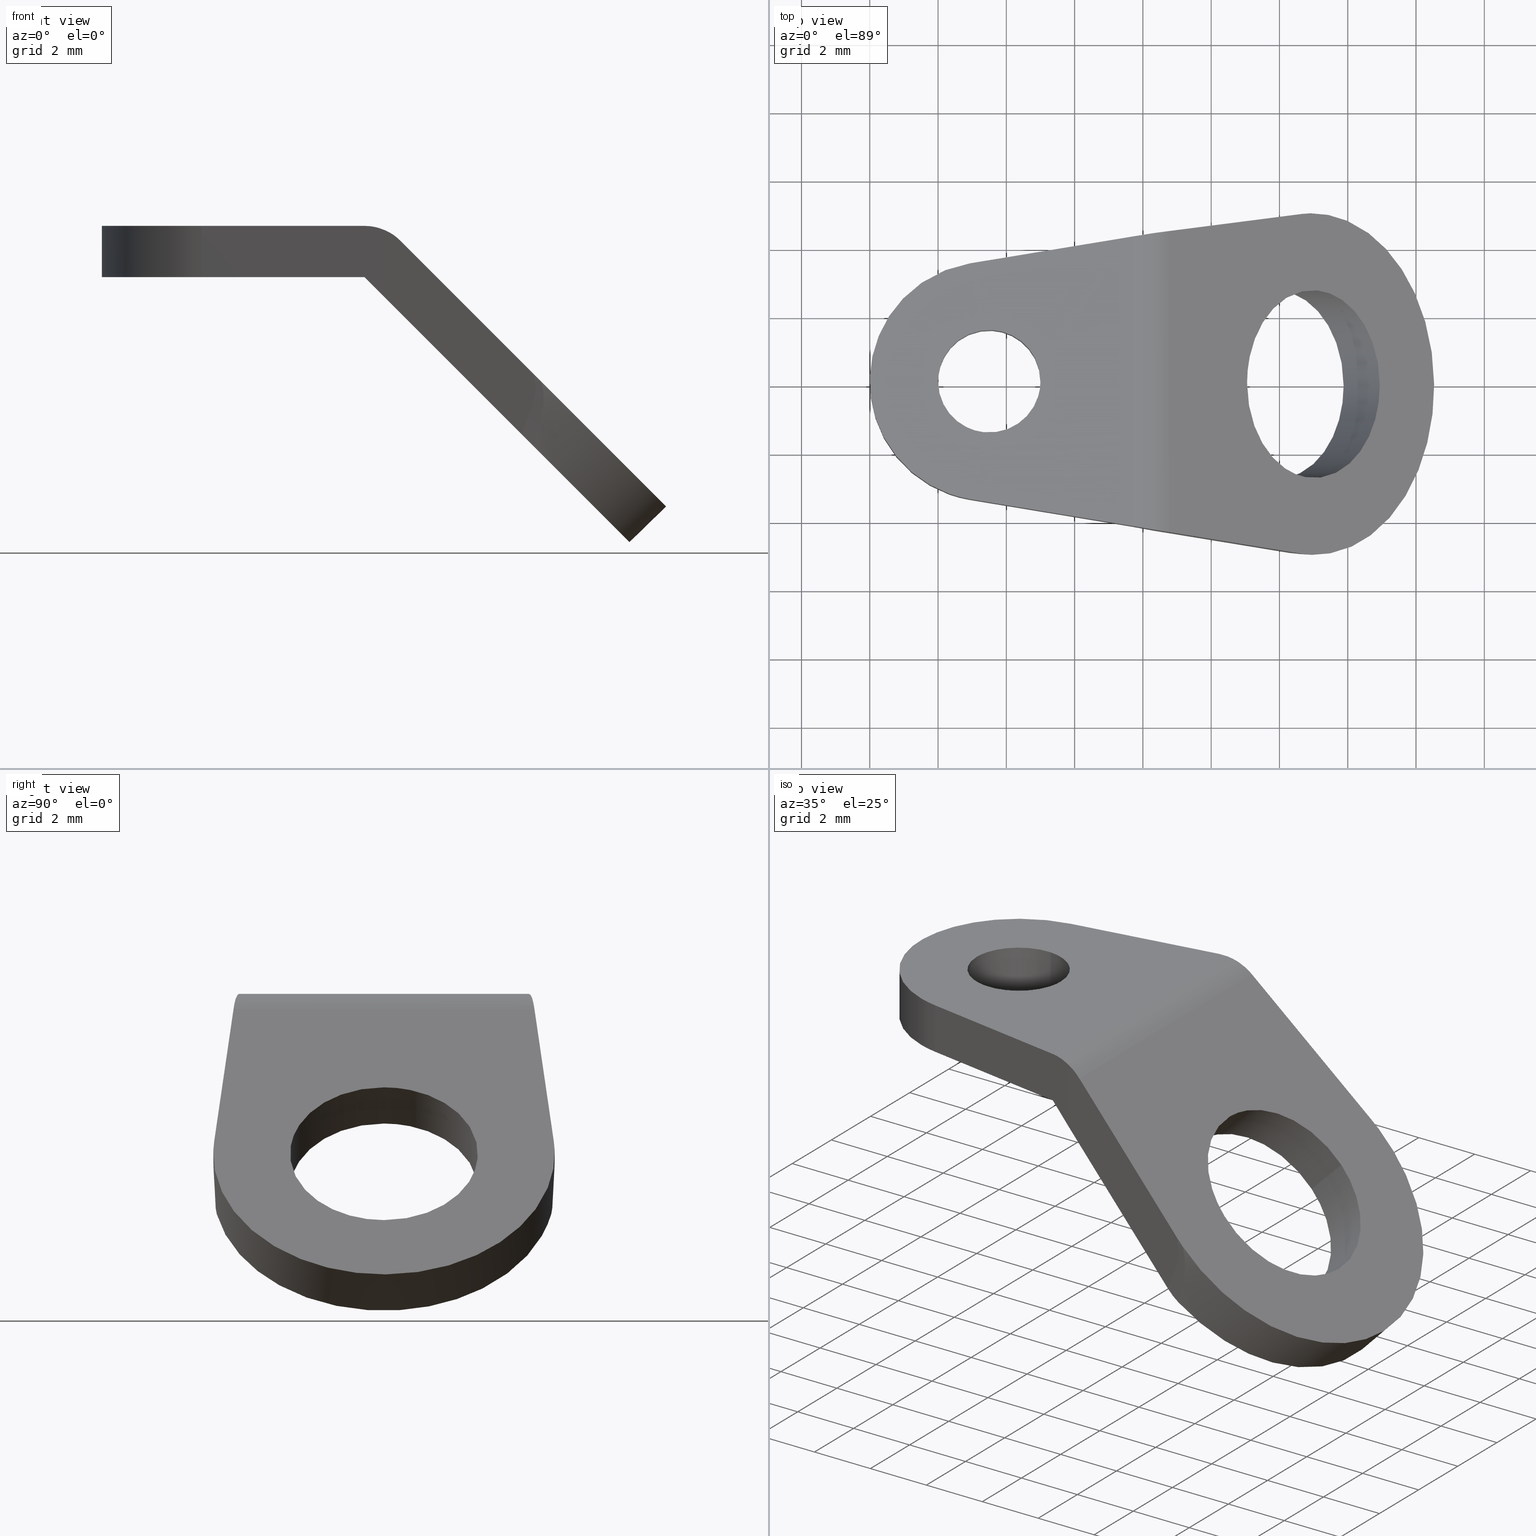
[diagram: canonical four-view strip — front | top / right | iso, engineering-drawing reading convention]
A machine part, canonical four-view strip (front | top / right | iso — engineering-drawing reading convention). The complete STEP part file that produces these views, byte-faithful:
ISO-10303-21;
HEADER;
/****************************************************************
 * Generated by software with PDE/Lib inside                    *
 * PDElib Version 4.4.1-0003, patched  Thursday August 19 11:58 *
 * International Technegroup Inc. (www.iti-oh.com)              *
 ****************************************************************/
FILE_DESCRIPTION((''),'2;1');
FILE_NAME('','2005-12-14T15:38:46',(''),(''),'','CADfix','');
FILE_SCHEMA(('AUTOMOTIVE_DESIGN'));
ENDSEC;
DATA;
#5=APPLICATION_CONTEXT('automotive design');
#6=APPLICATION_PROTOCOL_DEFINITION('Draft International Standard','automotive_design',1998,#5);
#7=PRODUCT_CONTEXT('None',#5,'mechanical');
#8=PRODUCT('terminal','','None',(#7));
#9=PRODUCT_RELATED_PRODUCT_CATEGORY('part','description',(#8));
#10=PRODUCT_DEFINITION_FORMATION('None','None',#8);
#11=PRODUCT_DEFINITION_CONTEXT('part definition',#5,'design');
#12=PRODUCT_DEFINITION('None','None',#10,#11);
#18=(NAMED_UNIT(*)PLANE_ANGLE_UNIT()SI_UNIT($,.RADIAN.));
#19=DIMENSIONAL_EXPONENTS(0.0,0.0,0.0,0.0,0.0,0.0,0.0);
#20=PLANE_ANGLE_MEASURE_WITH_UNIT(PLANE_ANGLE_MEASURE(0.017453292500000),#18);
#24=(CONVERSION_BASED_UNIT('DEGREE',#20)NAMED_UNIT(#19)PLANE_ANGLE_UNIT());
#28=(NAMED_UNIT(*)SI_UNIT($,.STERADIAN.)SOLID_ANGLE_UNIT());
#32=(LENGTH_UNIT()NAMED_UNIT(*)SI_UNIT(.MILLI.,.METRE.));
#34=UNCERTAINTY_MEASURE_WITH_UNIT(LENGTH_MEASURE(0.001000000000000),#32,'DISTANCE_ACCURACY_VALUE','');
#36=(GEOMETRIC_REPRESENTATION_CONTEXT(3)GLOBAL_UNCERTAINTY_ASSIGNED_CONTEXT((#34))GLOBAL_UNIT_ASSIGNED_CONTEXT((#24,#28,#32))REPRESENTATION_CONTEXT('None','None'));
#37=AXIS2_PLACEMENT_3D('',#38,#39,#40);
#38=CARTESIAN_POINT('',(0.0,0.0,0.0));
#39=DIRECTION('',(0.0,0.0,1.0));
#40=DIRECTION('',(1.0,0.0,0.0));
#41=ADVANCED_BREP_SHAPE_REPRESENTATION('',(#37,#1220),#36);
#42=PRODUCT_DEFINITION_SHAPE('','',#12);
#43=SHAPE_DEFINITION_REPRESENTATION(#42,#41);
#44=CARTESIAN_POINT('',(11.650334348264019,-2.725959262324494,-5.510979861002394));
#45=CARTESIAN_POINT('',(11.664702273918753,-2.728374520804075,-5.525347784809910));
#46=CARTESIAN_POINT('',(11.734252377524886,-2.740065942483665,-5.594897879474350));
#47=CARTESIAN_POINT('',(11.789800582671210,-2.744870695660134,-5.650446077479129));
#48=CARTESIAN_POINT('',(13.730717389819562,-2.912754179380989,-7.591362635093802));
#49=CARTESIAN_POINT('',(13.849428947238870,-0.167883483720855,-7.710074177250973));
#50=CARTESIAN_POINT('',(13.968140504658169,2.576987211939279,-7.828785719408145));
#51=CARTESIAN_POINT('',(12.013265082827109,2.746078073973424,-5.873910548905350));
#52=CARTESIAN_POINT('',(11.999389384502726,2.747278280270354,-5.860034852364889));
#53=CARTESIAN_POINT('',(12.764690714443105,-2.725959262324494,-4.396623351556229));
#54=CARTESIAN_POINT('',(12.779058640097832,-2.728374520804075,-4.410991275363744));
#55=CARTESIAN_POINT('',(12.848608743703975,-2.740065942483665,-4.480541370028183));
#56=CARTESIAN_POINT('',(12.904156948850300,-2.744870695660134,-4.536089568032963));
#57=CARTESIAN_POINT('',(14.845073755998653,-2.912754179380989,-6.477006125647636));
#58=CARTESIAN_POINT('',(14.963785313417951,-0.167883483720855,-6.595717667804807));
#59=CARTESIAN_POINT('',(15.082496870837259,2.576987211939279,-6.714429209961978));
#60=CARTESIAN_POINT('',(13.127621449006199,2.746078073973424,-4.759554039459184));
#61=CARTESIAN_POINT('',(13.113745750681817,2.747278280270354,-4.745678342918722));
#69=(BOUNDED_SURFACE()B_SPLINE_SURFACE(2,1,((#44,#53),(#45,#54),(#46,#55),(#47,#56),(#48,#57),(#49,#58),(#50,#59),(#51,#60),(#52,#61)),.UNSPECIFIED.,.F.,.F.,.U.)B_SPLINE_SURFACE_WITH_KNOTS((3,1,2,2,1,3),(2,2),(0.0,0.046473180279848,0.228727147724010,4.785076333828059,9.341425519932107,9.387905192273962),(0.0,1.0),.UNSPECIFIED.)GEOMETRIC_REPRESENTATION_ITEM()RATIONAL_B_SPLINE_SURFACE(((0.972008967914099,0.972008967914099),(0.974757384354613,0.974757384354613),(0.988284271247462,0.988284271247462),(1.0,1.0),(0.707106781186548,0.707106781186548),(1.0,1.0),(0.707106781186548,0.707106781186548),(1.002987826500023,1.002987826500023),(1.005975653000046,1.005975653000046)))REPRESENTATION_ITEM('')SURFACE());
#70=CARTESIAN_POINT('',(12.766167338002010,-2.730776364142925,-4.452458822055986));
#71=VERTEX_POINT('',#70);
#72=CARTESIAN_POINT('',(14.940232855966521,0.0,-6.626524060512137));
#73=VERTEX_POINT('',#72);
#74=CARTESIAN_POINT('',(12.766167338002019,-2.730776364142925,-4.452458822055986));
#75=CARTESIAN_POINT('',(12.880525690513572,-2.750000000000001,-4.566817159865109));
#76=CARTESIAN_POINT('',(12.995689082703541,-2.750000000000000,-4.681980537249110));
#77=CARTESIAN_POINT('',(14.940232855966512,-2.750000000000000,-6.626524060512138));
#78=CARTESIAN_POINT('',(14.940232855966521,0.0,-6.626524060512137));
#86=(BOUNDED_CURVE()B_SPLINE_CURVE(2,(#74,#75,#76,#77,#78),.UNSPECIFIED.,.F.,.U.)B_SPLINE_CURVE_WITH_KNOTS((3,2,3),(0.729562560280352,0.750000000000000,1.0),.UNSPECIFIED.)CURVE()GEOMETRIC_REPRESENTATION_ITEM()RATIONAL_B_SPLINE_CURVE((0.956026924250334,0.976056049984825,1.0,0.707106781186548,1.0))REPRESENTATION_ITEM(''));
#87=EDGE_CURVE('',#71,#73,#86,.T.);
#88=ORIENTED_EDGE('',*,*,#87,.T.);
#89=CARTESIAN_POINT('',(13.114397691125070,2.744870950733273,-4.800689130408792));
#90=VERTEX_POINT('',#89);
#91=CARTESIAN_POINT('',(14.940232855966521,0.0,-6.626524060512137));
#92=CARTESIAN_POINT('',(14.940232855966514,2.586945621895740,-6.626524060512138));
#93=CARTESIAN_POINT('',(13.114397691125070,2.744870950733273,-4.800689130408792));
#101=(BOUNDED_CURVE()B_SPLINE_CURVE(2,(#91,#92,#93),.UNSPECIFIED.,.F.,.U.)B_SPLINE_CURVE_WITH_KNOTS((3,3),(0.0,0.239333224406841),.UNSPECIFIED.)CURVE()GEOMETRIC_REPRESENTATION_ITEM()RATIONAL_B_SPLINE_CURVE((1.0,0.719603686137912,0.976072603543073))REPRESENTATION_ITEM(''));
#102=EDGE_CURVE('',#73,#90,#101,.T.);
#103=ORIENTED_EDGE('',*,*,#102,.T.);
#104=CARTESIAN_POINT('',(12.053737295723201,2.744870947583515,-5.861349735007191));
#105=VERTEX_POINT('',#104);
#106=CARTESIAN_POINT('',(12.053737295723201,2.744870947583515,-5.861349735007191));
#107=CARTESIAN_POINT('',(13.114397691125070,2.744870950733273,-4.800689130408792));
#108=QUASI_UNIFORM_CURVE('',1,(#106,#107),.UNSPECIFIED.,.F.,.U.);
#109=EDGE_CURVE('',#105,#90,#108,.T.);
#110=ORIENTED_EDGE('',*,*,#109,.F.);
#111=CARTESIAN_POINT('',(13.879572424148220,0.0,-7.687184628694018));
#112=VERTEX_POINT('',#111);
#113=CARTESIAN_POINT('',(13.879572424148220,0.0,-7.687184628694018));
#114=CARTESIAN_POINT('',(13.879572424148218,2.586945573267449,-7.687184628694017));
#115=CARTESIAN_POINT('',(12.053737295723204,2.744870947583515,-5.861349735007191));
#123=(BOUNDED_CURVE()B_SPLINE_CURVE(2,(#113,#114,#115),.UNSPECIFIED.,.F.,.U.)B_SPLINE_CURVE_WITH_KNOTS((3,3),(0.0,0.239333221169428),.UNSPECIFIED.)CURVE()GEOMETRIC_REPRESENTATION_ITEM()RATIONAL_B_SPLINE_CURVE((1.0,0.719603689930777,0.976072596604665))REPRESENTATION_ITEM(''));
#124=EDGE_CURVE('',#112,#105,#123,.T.);
#125=ORIENTED_EDGE('',*,*,#124,.F.);
#126=CARTESIAN_POINT('',(11.705506893935681,-2.730776362084040,-5.513119377989861));
#127=VERTEX_POINT('',#126);
#128=CARTESIAN_POINT('',(11.705506893935686,-2.730776362084040,-5.513119377989861));
#129=CARTESIAN_POINT('',(11.819865252506522,-2.750000000000000,-5.627477721858240));
#130=CARTESIAN_POINT('',(11.935028650885240,-2.750000000000000,-5.742641105430990));
#131=CARTESIAN_POINT('',(13.879572424148217,-2.750000000000000,-7.687184628694018));
#132=CARTESIAN_POINT('',(13.879572424148220,0.0,-7.687184628694018));
#140=(BOUNDED_CURVE()B_SPLINE_CURVE(2,(#128,#129,#130,#131,#132),.UNSPECIFIED.,.F.,.U.)B_SPLINE_CURVE_WITH_KNOTS((3,2,3),(0.729562559208364,0.750000000000000,1.0),.UNSPECIFIED.)CURVE()GEOMETRIC_REPRESENTATION_ITEM()RATIONAL_B_SPLINE_CURVE((0.956026922149193,0.976056048728914,1.0,0.707106781186548,1.0))REPRESENTATION_ITEM(''));
#141=EDGE_CURVE('',#127,#112,#140,.T.);
#142=ORIENTED_EDGE('',*,*,#141,.F.);
#143=CARTESIAN_POINT('',(11.705506893935681,-2.730776362084040,-5.513119377989861));
#144=CARTESIAN_POINT('',(12.766167338002010,-2.730776364142925,-4.452458822055986));
#145=QUASI_UNIFORM_CURVE('',1,(#143,#144),.UNSPECIFIED.,.F.,.U.);
#146=EDGE_CURVE('',#127,#71,#145,.T.);
#147=ORIENTED_EDGE('',*,*,#146,.T.);
#148=EDGE_LOOP('',(#88,#103,#110,#125,#142,#147));
#149=FACE_OUTER_BOUND('',#148,.T.);
#150=ADVANCED_FACE('',(#149),#69,.F.);
#151=CARTESIAN_POINT('',(12.027223697509820,2.744870695660134,-5.887869161793470));
#152=CARTESIAN_POINT('',(10.086306890361467,2.912754179380989,-3.946952604178797));
#153=CARTESIAN_POINT('',(9.967595332942160,0.167883483720855,-3.828241062021626));
#154=CARTESIAN_POINT('',(9.855489665337265,-2.424244599808629,-3.716135408829576));
#155=CARTESIAN_POINT('',(11.678989404056860,-2.730776197500084,-5.539634913111194));
#156=CARTESIAN_POINT('',(13.141580063688910,2.744870695660134,-4.773512652347304));
#157=CARTESIAN_POINT('',(11.200663256540556,2.912754179380989,-2.832596094732632));
#158=CARTESIAN_POINT('',(11.081951699121250,0.167883483720855,-2.713884552575460));
#159=CARTESIAN_POINT('',(10.969846031516349,-2.424244599808629,-2.601778899383410));
#160=CARTESIAN_POINT('',(12.793345770235941,-2.730776197500084,-4.425278403665029));
#168=(BOUNDED_SURFACE()B_SPLINE_SURFACE(2,1,((#151,#156),(#152,#157),(#153,#158),(#154,#159),(#155,#160)),.UNSPECIFIED.,.F.,.F.,.U.)B_SPLINE_SURFACE_WITH_KNOTS((3,2,3),(2,2),(0.0,4.556349186104045,8.930444404763927),(0.0,1.0),.UNSPECIFIED.)GEOMETRIC_REPRESENTATION_ITEM()RATIONAL_B_SPLINE_SURFACE(((1.0,1.0),(0.707106781186548,0.707106781186548),(1.0,1.0),(0.718822509939086,0.718822509939086),(0.977505800795127,0.977505800795127)))REPRESENTATION_ITEM('')SURFACE());
#169=CARTESIAN_POINT('',(11.051145309440560,0.0,-2.737437013986083));
#170=VERTEX_POINT('',#169);
#171=CARTESIAN_POINT('',(11.051145309440560,0.0,-2.737437013986083));
#172=CARTESIAN_POINT('',(11.051145309440562,-2.442481209140467,-2.737437013986082));
#173=CARTESIAN_POINT('',(12.766167338002019,-2.730776364142925,-4.452458822055986));
#181=(BOUNDED_CURVE()B_SPLINE_CURVE(2,(#171,#172,#173),.UNSPECIFIED.,.F.,.U.)B_SPLINE_CURVE_WITH_KNOTS((3,3),(0.500000000000000,0.729562560280352),.UNSPECIFIED.)CURVE()GEOMETRIC_REPRESENTATION_ITEM()RATIONAL_B_SPLINE_CURVE((1.0,0.731050731201722,0.956026924250334))REPRESENTATION_ITEM(''));
#182=EDGE_CURVE('',#170,#71,#181,.T.);
#183=ORIENTED_EDGE('',*,*,#182,.T.);
#184=ORIENTED_EDGE('',*,*,#146,.F.);
#185=CARTESIAN_POINT('',(9.990484877622263,0.0,-3.798097582167963));
#186=VERTEX_POINT('',#185);
#187=CARTESIAN_POINT('',(9.990484877622263,0.0,-3.798097582167963));
#188=CARTESIAN_POINT('',(9.990484877622263,-2.442481193538749,-3.798097582167963));
#189=CARTESIAN_POINT('',(11.705506893935679,-2.730776362084040,-5.513119377989861));
#197=(BOUNDED_CURVE()B_SPLINE_CURVE(2,(#187,#188,#189),.UNSPECIFIED.,.F.,.U.)B_SPLINE_CURVE_WITH_KNOTS((3,3),(0.500000000000000,0.729562559208364),.UNSPECIFIED.)CURVE()GEOMETRIC_REPRESENTATION_ITEM()RATIONAL_B_SPLINE_CURVE((1.0,0.731050732457634,0.956026922149192))REPRESENTATION_ITEM(''));
#198=EDGE_CURVE('',#186,#127,#197,.T.);
#199=ORIENTED_EDGE('',*,*,#198,.F.);
#200=CARTESIAN_POINT('',(12.053737295723204,2.744870947583515,-5.861349735007191));
#201=CARTESIAN_POINT('',(11.994438376139685,2.750000000000000,-5.802050823047434));
#202=CARTESIAN_POINT('',(11.935028650885240,2.750000000000000,-5.742641105430990));
#203=CARTESIAN_POINT('',(9.990484877622263,2.750000000000000,-3.798097582167963));
#204=CARTESIAN_POINT('',(9.990484877622263,0.0,-3.798097582167963));
#212=(BOUNDED_CURVE()B_SPLINE_CURVE(2,(#200,#201,#202,#203,#204),.UNSPECIFIED.,.F.,.U.)B_SPLINE_CURVE_WITH_KNOTS((3,2,3),(0.239333221169428,0.250000000000000,0.500000000000000),.UNSPECIFIED.)CURVE()GEOMETRIC_REPRESENTATION_ITEM()RATIONAL_B_SPLINE_CURVE((0.976072596604665,0.987503091255770,1.0,0.707106781186548,1.0))REPRESENTATION_ITEM(''));
#213=EDGE_CURVE('',#105,#186,#212,.T.);
#214=ORIENTED_EDGE('',*,*,#213,.F.);
#215=ORIENTED_EDGE('',*,*,#109,.T.);
#216=CARTESIAN_POINT('',(13.114397691125070,2.744870950733273,-4.800689130408792));
#217=CARTESIAN_POINT('',(13.055098789698699,2.750000000000000,-4.741390236606266));
#218=CARTESIAN_POINT('',(12.995689082703541,2.750000000000000,-4.681980537249110));
#219=CARTESIAN_POINT('',(11.051145309440562,2.750000000000000,-2.737437013986082));
#220=CARTESIAN_POINT('',(11.051145309440560,0.0,-2.737437013986083));
#228=(BOUNDED_CURVE()B_SPLINE_CURVE(2,(#216,#217,#218,#219,#220),.UNSPECIFIED.,.F.,.U.)B_SPLINE_CURVE_WITH_KNOTS((3,2,3),(0.239333224406841,0.250000000000000,0.500000000000000),.UNSPECIFIED.)CURVE()GEOMETRIC_REPRESENTATION_ITEM()RATIONAL_B_SPLINE_CURVE((0.976072603543073,0.987503095048635,1.0,0.707106781186548,1.0))REPRESENTATION_ITEM(''));
#229=EDGE_CURVE('',#90,#170,#228,.T.);
#230=ORIENTED_EDGE('',*,*,#229,.T.);
#231=EDGE_LOOP('',(#183,#184,#199,#214,#215,#230));
#232=FACE_OUTER_BOUND('',#231,.T.);
#233=ADVANCED_FACE('',(#232),#168,.F.);
#234=CARTESIAN_POINT('',(3.322948648014862,-1.489514289545500,-1.537499999999946));
#235=CARTESIAN_POINT('',(3.365577907043035,-1.494581423172908,-1.537499999999945));
#236=CARTESIAN_POINT('',(3.408427190697715,-1.497202197632800,-1.537499999999945));
#237=CARTESIAN_POINT('',(4.905629388330514,-1.588775006935085,-1.537499999999945));
#238=CARTESIAN_POINT('',(4.997202197632801,-0.091572809302285,-1.537499999999945));
#239=CARTESIAN_POINT('',(5.088775006935085,1.405629388330515,-1.537499999999945));
#240=CARTESIAN_POINT('',(3.591572809302285,1.497202197632800,-1.537499999999945));
#241=CARTESIAN_POINT('',(3.322948648014862,-1.489514289545500,0.038437499999999));
#242=CARTESIAN_POINT('',(3.365577907043035,-1.494581423172908,0.038437499999999));
#243=CARTESIAN_POINT('',(3.408427190697715,-1.497202197632800,0.038437499999999));
#244=CARTESIAN_POINT('',(4.905629388330514,-1.588775006935085,0.038437499999999));
#245=CARTESIAN_POINT('',(4.997202197632801,-0.091572809302285,0.038437499999999));
#246=CARTESIAN_POINT('',(5.088775006935085,1.405629388330515,0.038437499999999));
#247=CARTESIAN_POINT('',(3.591572809302285,1.497202197632800,0.038437499999999));
#255=(BOUNDED_SURFACE()B_SPLINE_SURFACE(2,1,((#234,#241),(#235,#242),(#236,#243),(#237,#244),(#238,#245),(#239,#246),(#240,#247)),.UNSPECIFIED.,.F.,.F.,.U.)B_SPLINE_SURFACE_WITH_KNOTS((3,2,2,3),(2,2),(3.078760800517997,3.141592653589793,4.712388980384690,6.283185307179586),(0.0,1.0),.UNSPECIFIED.)GEOMETRIC_REPRESENTATION_ITEM()RATIONAL_B_SPLINE_SURFACE(((0.977505800795127,0.977505800795127),(0.988284271247462,0.988284271247462),(1.0,1.0),(0.707106781186548,0.707106781186548),(1.0,1.0),(0.707106781186548,0.707106781186548),(1.0,1.0)))REPRESENTATION_ITEM('')SURFACE());
#256=CARTESIAN_POINT('',(3.322948647998651,-1.489514289543573,3.904214E-017));
#257=VERTEX_POINT('',#256);
#258=CARTESIAN_POINT('',(5.0,0.0,0.0));
#259=VERTEX_POINT('',#258);
#260=CARTESIAN_POINT('',(3.322948647998651,-1.489514289543573,3.904214E-017));
#261=CARTESIAN_POINT('',(3.411163820505752,-1.500000000000000,0.0));
#262=CARTESIAN_POINT('',(3.500000000000000,-1.500000000000000,0.0));
#263=CARTESIAN_POINT('',(5.000000000000001,-1.500000000000000,0.0));
#264=CARTESIAN_POINT('',(5.0,0.0,0.0));
#272=(BOUNDED_CURVE()B_SPLINE_CURVE(2,(#260,#261,#262,#263,#264),.UNSPECIFIED.,.F.,.U.)B_SPLINE_CURVE_WITH_KNOTS((3,2,3),(0.229562473511965,0.250000000000000,0.500000000000000),.UNSPECIFIED.)CURVE()GEOMETRIC_REPRESENTATION_ITEM()RATIONAL_B_SPLINE_CURVE((0.956026754180675,0.976055948329338,1.0,0.707106781186548,1.0))REPRESENTATION_ITEM(''));
#273=EDGE_CURVE('',#257,#259,#272,.T.);
#274=ORIENTED_EDGE('',*,*,#273,.T.);
#275=CARTESIAN_POINT('',(3.591572391520060,1.497202223185339,-1.793704E-015));
#276=VERTEX_POINT('',#275);
#277=CARTESIAN_POINT('',(5.0,0.0,0.0));
#278=CARTESIAN_POINT('',(5.0,1.411059889319680,0.0));
#279=CARTESIAN_POINT('',(3.591572391520061,1.497202223185339,-1.793704E-015));
#287=(BOUNDED_CURVE()B_SPLINE_CURVE(2,(#277,#278,#279),.UNSPECIFIED.,.F.,.U.)B_SPLINE_CURVE_WITH_KNOTS((3,3),(0.500000000000000,0.739333058537563),.UNSPECIFIED.)CURVE()GEOMETRIC_REPRESENTATION_ITEM()RATIONAL_B_SPLINE_CURVE((1.0,0.719603880465859,0.976072248053079))REPRESENTATION_ITEM(''));
#288=EDGE_CURVE('',#259,#276,#287,.T.);
#289=ORIENTED_EDGE('',*,*,#288,.T.);
#290=CARTESIAN_POINT('',(3.591572396663350,1.497202222870765,-1.499999999999946));
#291=VERTEX_POINT('',#290);
#292=CARTESIAN_POINT('',(3.591572396663350,1.497202222870765,-1.499999999999946));
#293=CARTESIAN_POINT('',(3.591572391520060,1.497202223185339,-1.793704E-015));
#294=QUASI_UNIFORM_CURVE('',1,(#292,#293),.UNSPECIFIED.,.F.,.U.);
#295=EDGE_CURVE('',#291,#276,#294,.T.);
#296=ORIENTED_EDGE('',*,*,#295,.F.);
#297=CARTESIAN_POINT('',(5.0,0.0,-1.499999999999946));
#298=VERTEX_POINT('',#297);
#299=CARTESIAN_POINT('',(5.0,0.0,-1.499999999999946));
#300=CARTESIAN_POINT('',(5.0,1.411059879606823,-1.499999999999947));
#301=CARTESIAN_POINT('',(3.591572396663350,1.497202222870765,-1.499999999999946));
#309=(BOUNDED_CURVE()B_SPLINE_CURVE(2,(#299,#300,#301),.UNSPECIFIED.,.F.,.U.)B_SPLINE_CURVE_WITH_KNOTS((3,3),(0.500000000000000,0.739333057352074),.UNSPECIFIED.)CURVE()GEOMETRIC_REPRESENTATION_ITEM()RATIONAL_B_SPLINE_CURVE((1.0,0.719603881854746,0.976072245512347))REPRESENTATION_ITEM(''));
#310=EDGE_CURVE('',#298,#291,#309,.T.);
#311=ORIENTED_EDGE('',*,*,#310,.F.);
#312=CARTESIAN_POINT('',(3.322948647998651,-1.489514289543573,-1.499999999999946));
#313=VERTEX_POINT('',#312);
#314=CARTESIAN_POINT('',(3.322948647998651,-1.489514289543572,-1.499999999999946));
#315=CARTESIAN_POINT('',(3.411163820505752,-1.500000000000000,-1.499999999999946));
#316=CARTESIAN_POINT('',(3.500000000000000,-1.500000000000000,-1.499999999999946));
#317=CARTESIAN_POINT('',(5.000000000000001,-1.500000000000000,-1.499999999999946));
#318=CARTESIAN_POINT('',(5.0,0.0,-1.499999999999946));
#326=(BOUNDED_CURVE()B_SPLINE_CURVE(2,(#314,#315,#316,#317,#318),.UNSPECIFIED.,.F.,.U.)B_SPLINE_CURVE_WITH_KNOTS((3,2,3),(0.229562473511965,0.250000000000000,0.500000000000000),.UNSPECIFIED.)CURVE()GEOMETRIC_REPRESENTATION_ITEM()RATIONAL_B_SPLINE_CURVE((0.956026754180675,0.976055948329338,1.0,0.707106781186548,1.0))REPRESENTATION_ITEM(''));
#327=EDGE_CURVE('',#313,#298,#326,.T.);
#328=ORIENTED_EDGE('',*,*,#327,.F.);
#329=CARTESIAN_POINT('',(3.322948647998651,-1.489514289543573,-1.499999999999946));
#330=CARTESIAN_POINT('',(3.322948647998651,-1.489514289543573,3.904214E-017));
#331=QUASI_UNIFORM_CURVE('',1,(#329,#330),.UNSPECIFIED.,.F.,.U.);
#332=EDGE_CURVE('',#313,#257,#331,.T.);
#333=ORIENTED_EDGE('',*,*,#332,.T.);
#334=EDGE_LOOP('',(#274,#289,#296,#311,#328,#333));
#335=FACE_OUTER_BOUND('',#334,.T.);
#336=ADVANCED_FACE('',(#335),#255,.F.);
#337=CARTESIAN_POINT('',(3.591572809302285,1.497202197632800,-1.537499999999945));
#338=CARTESIAN_POINT('',(2.094370611669486,1.588775006935085,-1.537499999999945));
#339=CARTESIAN_POINT('',(2.002797802367200,0.091572809302285,-1.537499999999945));
#340=CARTESIAN_POINT('',(1.916320704901209,-1.322315236259252,-1.537499999999945));
#341=CARTESIAN_POINT('',(3.322948648014862,-1.489514289545500,-1.537499999999946));
#342=CARTESIAN_POINT('',(3.591572809302285,1.497202197632800,0.038437499999999));
#343=CARTESIAN_POINT('',(2.094370611669486,1.588775006935085,0.038437499999999));
#344=CARTESIAN_POINT('',(2.002797802367200,0.091572809302285,0.038437499999999));
#345=CARTESIAN_POINT('',(1.916320704901209,-1.322315236259252,0.038437499999999));
#346=CARTESIAN_POINT('',(3.322948648014862,-1.489514289545500,0.038437499999999));
#354=(BOUNDED_SURFACE()B_SPLINE_SURFACE(2,1,((#337,#342),(#338,#343),(#339,#344),(#340,#345),(#341,#346)),.UNSPECIFIED.,.F.,.F.,.U.)B_SPLINE_SURFACE_WITH_KNOTS((3,2,3),(2,2),(0.0,1.570796326794897,3.078760800517997),(0.0,1.0),.UNSPECIFIED.)GEOMETRIC_REPRESENTATION_ITEM()RATIONAL_B_SPLINE_SURFACE(((1.0,1.0),(0.707106781186548,0.707106781186548),(1.0,1.0),(0.718822509939086,0.718822509939086),(0.977505800795127,0.977505800795127)))REPRESENTATION_ITEM('')SURFACE());
#355=CARTESIAN_POINT('',(2.0,0.0,0.0));
#356=VERTEX_POINT('',#355);
#357=CARTESIAN_POINT('',(2.0,0.0,0.0));
#358=CARTESIAN_POINT('',(2.0,-1.332261788897848,0.0));
#359=CARTESIAN_POINT('',(3.322948647998651,-1.489514289543573,3.904214E-017));
#367=(BOUNDED_CURVE()B_SPLINE_CURVE(2,(#357,#358,#359),.UNSPECIFIED.,.F.,.U.)B_SPLINE_CURVE_WITH_KNOTS((3,3),(0.0,0.229562473511965),.UNSPECIFIED.)CURVE()GEOMETRIC_REPRESENTATION_ITEM()RATIONAL_B_SPLINE_CURVE((1.0,0.731050832857210,0.956026754180675))REPRESENTATION_ITEM(''));
#368=EDGE_CURVE('',#356,#257,#367,.T.);
#369=ORIENTED_EDGE('',*,*,#368,.T.);
#370=ORIENTED_EDGE('',*,*,#332,.F.);
#371=CARTESIAN_POINT('',(2.0,0.0,-1.499999999999946));
#372=VERTEX_POINT('',#371);
#373=CARTESIAN_POINT('',(2.0,0.0,-1.499999999999946));
#374=CARTESIAN_POINT('',(2.0,-1.332261788897848,-1.499999999999947));
#375=CARTESIAN_POINT('',(3.322948647998651,-1.489514289543573,-1.499999999999945));
#383=(BOUNDED_CURVE()B_SPLINE_CURVE(2,(#373,#374,#375),.UNSPECIFIED.,.F.,.U.)B_SPLINE_CURVE_WITH_KNOTS((3,3),(0.0,0.229562473511965),.UNSPECIFIED.)CURVE()GEOMETRIC_REPRESENTATION_ITEM()RATIONAL_B_SPLINE_CURVE((1.0,0.731050832857210,0.956026754180675))REPRESENTATION_ITEM(''));
#384=EDGE_CURVE('',#372,#313,#383,.T.);
#385=ORIENTED_EDGE('',*,*,#384,.F.);
#386=CARTESIAN_POINT('',(3.591572396663350,1.497202222870765,-1.499999999999946));
#387=CARTESIAN_POINT('',(3.545828731151959,1.500000000000000,-1.499999999999946));
#388=CARTESIAN_POINT('',(3.500000000000000,1.500000000000000,-1.499999999999946));
#389=CARTESIAN_POINT('',(2.000000000000000,1.500000000000000,-1.499999999999946));
#390=CARTESIAN_POINT('',(2.0,0.0,-1.499999999999946));
#398=(BOUNDED_CURVE()B_SPLINE_CURVE(2,(#386,#387,#388,#389,#390),.UNSPECIFIED.,.F.,.U.)B_SPLINE_CURVE_WITH_KNOTS((3,2,3),(0.739333057352074,0.750000000000000,1.0),.UNSPECIFIED.)CURVE()GEOMETRIC_REPRESENTATION_ITEM()RATIONAL_B_SPLINE_CURVE((0.976072245512348,0.987502899331802,1.0,0.707106781186548,1.0))REPRESENTATION_ITEM(''));
#399=EDGE_CURVE('',#291,#372,#398,.T.);
#400=ORIENTED_EDGE('',*,*,#399,.F.);
#401=ORIENTED_EDGE('',*,*,#295,.T.);
#402=CARTESIAN_POINT('',(3.591572391520060,1.497202223185339,-1.793704E-015));
#403=CARTESIAN_POINT('',(3.545828725994248,1.500000000000000,0.0));
#404=CARTESIAN_POINT('',(3.500000000000000,1.500000000000000,0.0));
#405=CARTESIAN_POINT('',(2.000000000000000,1.500000000000000,0.0));
#406=CARTESIAN_POINT('',(2.0,0.0,0.0));
#414=(BOUNDED_CURVE()B_SPLINE_CURVE(2,(#402,#403,#404,#405,#406),.UNSPECIFIED.,.F.,.U.)B_SPLINE_CURVE_WITH_KNOTS((3,2,3),(0.739333058537563,0.750000000000000,1.0),.UNSPECIFIED.)CURVE()GEOMETRIC_REPRESENTATION_ITEM()RATIONAL_B_SPLINE_CURVE((0.976072248053079,0.987502900720689,1.0,0.707106781186548,1.0))REPRESENTATION_ITEM(''));
#415=EDGE_CURVE('',#276,#356,#414,.T.);
#416=ORIENTED_EDGE('',*,*,#415,.T.);
#417=EDGE_LOOP('',(#369,#370,#385,#400,#401,#416));
#418=FACE_OUTER_BOUND('',#417,.T.);
#419=ADVANCED_FACE('',(#418),#354,.F.);
#420=CARTESIAN_POINT('',(12.688124066287145,-4.981684963275109,-4.588753987246013));
#421=CARTESIAN_POINT('',(12.688462133742885,-4.981734412377190,-4.590377159521308));
#422=CARTESIAN_POINT('',(12.688800201152837,-4.981783861472574,-4.592000331576748));
#423=CARTESIAN_POINT('',(12.757156239787786,-4.991782294255420,-4.920199999653116));
#424=CARTESIAN_POINT('',(12.595101623262696,-4.968078577322156,-5.478250587201793));
#425=CARTESIAN_POINT('',(12.206849679581730,-4.911288993852224,-6.253374510412685));
#426=CARTESIAN_POINT('',(12.688573580156726,-4.981750713636010,-4.588654023526565));
#427=CARTESIAN_POINT('',(12.688912706444459,-4.981800317613370,-4.590278257498050));
#428=CARTESIAN_POINT('',(12.689251832709214,-4.981849921587367,-4.591902491359530));
#429=CARTESIAN_POINT('',(12.757822439864732,-4.991879739292099,-4.920319112588465));
#430=CARTESIAN_POINT('',(12.595977856389545,-4.968206743877672,-5.478585767711016));
#431=CARTESIAN_POINT('',(12.207934629620041,-4.911447689415156,-6.253928668018435));
#432=CARTESIAN_POINT('',(12.777488368376286,-4.994756273220308,-4.568880989708759));
#433=CARTESIAN_POINT('',(12.778037533830823,-4.994836599611305,-4.570715097722363));
#434=CARTESIAN_POINT('',(12.778586706604859,-4.994916927072923,-4.572549230181662));
#435=CARTESIAN_POINT('',(12.889779605679839,-5.011181104313700,-4.943912333160037));
#436=CARTESIAN_POINT('',(12.770195255942825,-4.993689510195932,-5.545228165616750));
#437=CARTESIAN_POINT('',(12.424994680158678,-4.943197047167702,-6.364795964817328));
#438=CARTESIAN_POINT('',(12.867350027410158,-4.996594320251916,-4.549241654942168));
#439=CARTESIAN_POINT('',(12.868112578842828,-4.996665370813789,-4.551289550319808));
#440=CARTESIAN_POINT('',(12.868875130224771,-4.996736421370939,-4.553337445561215));
#441=CARTESIAN_POINT('',(13.023061411447454,-5.011102694182369,-4.967417544399786));
#442=CARTESIAN_POINT('',(12.946647101422791,-4.977243987223245,-5.611081676762074));
#443=CARTESIAN_POINT('',(12.642093768269277,-4.896053632208139,-6.469912167541894));
#444=CARTESIAN_POINT('',(12.867796310165305,-4.996603448602113,-4.549144119502431));
#445=CARTESIAN_POINT('',(12.868559918332521,-4.996674453036023,-4.551193077268247));
#446=CARTESIAN_POINT('',(12.869323526398123,-4.996745457460483,-4.553242034761450));
#447=CARTESIAN_POINT('',(13.023722423303886,-5.011102305306891,-4.967534118625564));
#448=CARTESIAN_POINT('',(12.947518910366986,-4.977162733587270,-5.611407044172469));
#449=CARTESIAN_POINT('',(12.643159763571443,-4.895822149619647,-6.470428306873757));
#457=(BOUNDED_SURFACE()B_SPLINE_SURFACE(3,2,((#420,#426,#432,#438,#444),(#421,#427,#433,#439,#445),(#422,#428,#434,#440,#446),(#423,#429,#435,#441,#447),(#424,#430,#436,#442,#448),(#425,#431,#437,#443,#449)),.UNSPECIFIED.,.F.,.F.,.U.)B_SPLINE_SURFACE_WITH_KNOTS((4,2,4),(3,1,1,3),(0.0,0.013641898814595,2.758381813027598),(0.0,0.002473754384782,0.488395939979945,0.490825815280939),.UNSPECIFIED.)GEOMETRIC_REPRESENTATION_ITEM()RATIONAL_B_SPLINE_SURFACE(((1.000018907124895,1.000009453562447,0.998143026747387,1.000009285876576,1.000018571753153),(1.000018974850727,1.000009487425363,0.998136375019028,1.000009319138837,1.000018638277674),(1.000019042576559,1.000009521288280,0.998129723290669,1.000009352401098,1.000018704802196),(1.000032736689547,1.000016368344773,0.996784748754477,1.000016078005532,1.000032156011063),(1.000070688430364,1.000035344215182,0.993057298495314,1.000034717284801,1.000069434569602),(1.000132691041424,1.000066345520712,0.986967679318887,1.000065168693829,1.000130337387658)))REPRESENTATION_ITEM('')SURFACE());
#458=CARTESIAN_POINT('',(12.646452727762901,-4.897729238720440,-6.454065090844519));
#459=VERTEX_POINT('',#458);
#460=CARTESIAN_POINT('',(12.287161439871340,-4.923036189169120,-6.094773849145049));
#461=VERTEX_POINT('',#460);
#462=CARTESIAN_POINT('',(12.646452727762901,-4.897729238720440,-6.454065090844519));
#463=CARTESIAN_POINT('',(12.587360890903801,-4.914896112606139,-6.394973261582552));
#464=CARTESIAN_POINT('',(12.527766612533300,-4.925565303439320,-6.335378990873650));
#465=CARTESIAN_POINT('',(12.407584608415521,-4.934056207269101,-6.215197002207055));
#466=CARTESIAN_POINT('',(12.347166718117871,-4.931813156839428,-6.154779119677014));
#467=CARTESIAN_POINT('',(12.287161439871340,-4.923036189169130,-6.094773849145049));
#468=B_SPLINE_CURVE_WITH_KNOTS('',3,(#462,#463,#464,#465,#466,#467),.UNSPECIFIED.,.F.,.U.,(4,2,4),(0.0,0.500000000000000,1.0),.UNSPECIFIED.);
#469=EDGE_CURVE('',#459,#461,#468,.T.);
#470=ORIENTED_EDGE('',*,*,#469,.F.);
#471=CARTESIAN_POINT('',(12.869188220313299,-4.996798481802500,-4.555479691122420));
#472=VERTEX_POINT('',#471);
#473=CARTESIAN_POINT('',(12.869188220313299,-4.996798481802500,-4.555479691122420));
#474=CARTESIAN_POINT('',(13.098671446246152,-5.018224105501179,-5.172311122482860));
#475=CARTESIAN_POINT('',(12.646452727762890,-4.897729238720451,-6.454065090844525));
#483=(BOUNDED_CURVE()B_SPLINE_CURVE(2,(#473,#474,#475),.UNSPECIFIED.,.F.,.U.)CURVE()GEOMETRIC_REPRESENTATION_ITEM()QUASI_UNIFORM_CURVE()RATIONAL_B_SPLINE_CURVE((1.0,0.992904572745584,1.0))REPRESENTATION_ITEM(''));
#484=EDGE_CURVE('',#472,#459,#483,.T.);
#485=ORIENTED_EDGE('',*,*,#484,.F.);
#486=CARTESIAN_POINT('',(12.690043658036100,-4.981965741820150,-4.593429944960429));
#487=VERTEX_POINT('',#486);
#488=CARTESIAN_POINT('',(12.869188220313299,-4.996798481802500,-4.555479691122420));
#489=CARTESIAN_POINT('',(12.779135886698626,-4.994997255605165,-4.574383387087357));
#490=CARTESIAN_POINT('',(12.690043658036100,-4.981965741820154,-4.593429944960435));
#498=(BOUNDED_CURVE()B_SPLINE_CURVE(2,(#488,#489,#490),.UNSPECIFIED.,.F.,.U.)CURVE()GEOMETRIC_REPRESENTATION_ITEM()QUASI_UNIFORM_CURVE()RATIONAL_B_SPLINE_CURVE((1.0,0.998123071562306,1.0))REPRESENTATION_ITEM(''));
#499=EDGE_CURVE('',#472,#487,#498,.T.);
#500=ORIENTED_EDGE('',*,*,#499,.T.);
#501=CARTESIAN_POINT('',(12.287161439871340,-4.923036189169120,-6.094773849145049));
#502=CARTESIAN_POINT('',(12.785912040157525,-4.995988403077153,-5.051458339548856));
#503=CARTESIAN_POINT('',(12.690043658036119,-4.981965741820154,-4.593429944960408));
#511=(BOUNDED_CURVE()B_SPLINE_CURVE(2,(#501,#502,#503),.UNSPECIFIED.,.F.,.U.)CURVE()GEOMETRIC_REPRESENTATION_ITEM()QUASI_UNIFORM_CURVE()RATIONAL_B_SPLINE_CURVE((1.0,0.993789063197932,1.0))REPRESENTATION_ITEM(''));
#512=EDGE_CURVE('',#461,#487,#511,.T.);
#513=ORIENTED_EDGE('',*,*,#512,.F.);
#514=EDGE_LOOP('',(#470,#485,#500,#513));
#515=FACE_OUTER_BOUND('',#514,.T.);
#516=ADVANCED_FACE('',(#515),#457,.T.);
#517=CARTESIAN_POINT('',(12.631954558184900,-4.973469053423912,-4.318246059495268));
#518=CARTESIAN_POINT('',(12.651552057273390,-4.976335578185394,-4.409923421122336));
#519=CARTESIAN_POINT('',(12.670837323242850,-4.979156432631598,-4.501668224937586));
#520=CARTESIAN_POINT('',(12.690043658036091,-4.981965741820156,-4.593429944961813));
#521=CARTESIAN_POINT('',(12.631954558184891,-4.973469053423910,-4.318246059494600));
#522=CARTESIAN_POINT('',(12.681133223579899,-4.980662413435913,-4.403464630185688));
#523=CARTESIAN_POINT('',(12.730109433078839,-4.987826159812684,-4.488942340560416));
#524=CARTESIAN_POINT('',(12.779135886698654,-4.994997255605222,-4.574383387088252));
#525=CARTESIAN_POINT('',(12.631954558184880,-4.973469053423909,-4.318246059493932));
#526=CARTESIAN_POINT('',(12.710714551052201,-4.984989271833180,-4.397006042174455));
#527=CARTESIAN_POINT('',(12.789924880690140,-4.992785160246435,-4.476216361689700));
#528=CARTESIAN_POINT('',(12.869188220313269,-4.996798481802498,-4.555479691122407));
#536=(BOUNDED_SURFACE()B_SPLINE_SURFACE(3,2,((#517,#521,#525),(#518,#522,#526),(#519,#523,#527),(#520,#524,#528)),.UNSPECIFIED.,.F.,.F.,.U.)B_SPLINE_SURFACE_WITH_KNOTS((4,4),(3,3),(-0.000011876684682,0.000269499804787),(0.0,1.0),.UNSPECIFIED.)GEOMETRIC_REPRESENTATION_ITEM()RATIONAL_B_SPLINE_SURFACE(((1.0,1.0,1.0),(1.0,1.000000174112340,1.0),(1.0,0.999375708991152,1.0),(1.0,0.998123071562301,1.0)))REPRESENTATION_ITEM('')SURFACE());
#537=CARTESIAN_POINT('',(12.631954559563800,-4.973469053625591,-4.318246060872835));
#538=VERTEX_POINT('',#537);
#539=CARTESIAN_POINT('',(12.631954559563800,-4.973469053625606,-4.318246060872834));
#540=CARTESIAN_POINT('',(12.750293838427002,-4.990778531242915,-4.436585324521778));
#541=CARTESIAN_POINT('',(12.869188220313291,-4.996798481802498,-4.555479691122424));
#549=(BOUNDED_CURVE()B_SPLINE_CURVE(2,(#539,#540,#541),.UNSPECIFIED.,.F.,.U.)CURVE()GEOMETRIC_REPRESENTATION_ITEM()QUASI_UNIFORM_CURVE()RATIONAL_B_SPLINE_CURVE((1.0,0.999434320666781,1.0))REPRESENTATION_ITEM(''));
#550=EDGE_CURVE('',#538,#472,#549,.T.);
#551=ORIENTED_EDGE('',*,*,#550,.F.);
#552=CARTESIAN_POINT('',(12.690043658036100,-4.981965741820150,-4.593429944960429));
#553=CARTESIAN_POINT('',(12.671648025696930,-4.979275014020304,-4.505541511242265));
#554=CARTESIAN_POINT('',(12.653179923837101,-4.976573686108953,-4.417668187891665));
#555=CARTESIAN_POINT('',(12.634434488402400,-4.973831792635850,-4.329855280200206));
#556=CARTESIAN_POINT('',(12.633608389006691,-4.973710959137524,-4.325985421309387));
#557=CARTESIAN_POINT('',(12.632781201590729,-4.973589966494558,-4.322115799729350));
#558=CARTESIAN_POINT('',(12.631954559563800,-4.973469053625591,-4.318246060872835));
#559=B_SPLINE_CURVE_WITH_KNOTS('',3,(#552,#553,#554,#555,#556,#557,#558),.UNSPECIFIED.,.F.,.U.,(4,3,4),(0.0,0.957790770991343,1.0),.UNSPECIFIED.);
#560=EDGE_CURVE('',#487,#538,#559,.T.);
#561=ORIENTED_EDGE('',*,*,#560,.F.);
#562=ORIENTED_EDGE('',*,*,#499,.F.);
#563=EDGE_LOOP('',(#551,#561,#562));
#564=FACE_OUTER_BOUND('',#563,.T.);
#565=ADVANCED_FACE('',(#564),#536,.T.);
#566=CARTESIAN_POINT('',(8.328672534789776,4.344027670055990,-0.078480314724803));
#567=CARTESIAN_POINT('',(8.328672534789776,4.344027670055990,-2.186337136016223));
#568=CARTESIAN_POINT('',(8.313705872436930,4.341852496648273,-0.078480314724803));
#569=CARTESIAN_POINT('',(8.313705872436930,4.341852496648273,-2.186337136016223));
#570=CARTESIAN_POINT('',(8.298786111110639,4.339375990378500,-0.078480314724803));
#571=CARTESIAN_POINT('',(8.298786111110639,4.339375990378500,-2.186337136016223));
#579=(BOUNDED_SURFACE()B_SPLINE_SURFACE(1,2,((#566,#568,#570),(#567,#569,#571)),.UNSPECIFIED.,.F.,.F.,.U.)B_SPLINE_SURFACE_WITH_KNOTS((2,2),(3,3),(0.0,2.107856821291420),(0.0,0.030248991751986),.UNSPECIFIED.)GEOMETRIC_REPRESENTATION_ITEM()RATIONAL_B_SPLINE_SURFACE(((0.998977464550751,0.998836588322725,0.998797258198027),(0.998977464550751,0.998836588322725,0.998797258198027)))REPRESENTATION_ITEM('')SURFACE());
#580=CARTESIAN_POINT('',(8.300141690605081,4.339600362831785,-2.107754612469330));
#581=VERTEX_POINT('',#580);
#582=CARTESIAN_POINT('',(8.327313075662550,4.343829457902276,-2.134925994033505));
#583=VERTEX_POINT('',#582);
#584=CARTESIAN_POINT('',(8.300141690605081,4.339600362831785,-2.107754612469330));
#585=CARTESIAN_POINT('',(8.313707999999908,4.341839444477920,-2.121320920120064));
#586=CARTESIAN_POINT('',(8.327313075662550,4.343829457902276,-2.134925994033505));
#594=(BOUNDED_CURVE()B_SPLINE_CURVE(2,(#584,#585,#586),.UNSPECIFIED.,.F.,.U.)CURVE()GEOMETRIC_REPRESENTATION_ITEM()QUASI_UNIFORM_CURVE()RATIONAL_B_SPLINE_CURVE((1.0,0.999957989709286,1.0))REPRESENTATION_ITEM(''));
#595=EDGE_CURVE('',#581,#583,#594,.T.);
#596=ORIENTED_EDGE('',*,*,#595,.F.);
#597=CARTESIAN_POINT('',(8.300141690605091,4.339600362831785,-0.128637526415259));
#598=VERTEX_POINT('',#597);
#599=CARTESIAN_POINT('',(8.300141690605091,4.339600362831785,-0.128637526415259));
#600=CARTESIAN_POINT('',(8.300141690605081,4.339600362831785,-2.107754612469330));
#601=QUASI_UNIFORM_CURVE('',1,(#599,#600),.UNSPECIFIED.,.F.,.U.);
#602=EDGE_CURVE('',#598,#581,#601,.T.);
#603=ORIENTED_EDGE('',*,*,#602,.F.);
#604=CARTESIAN_POINT('',(8.327313075662550,4.343829457902276,-0.141004153050684));
#605=VERTEX_POINT('',#604);
#606=CARTESIAN_POINT('',(8.300141690605081,4.339600362831790,-0.128637526415259));
#607=CARTESIAN_POINT('',(8.309227372850312,4.341099929424724,-0.132664076757740));
#608=CARTESIAN_POINT('',(8.318286318141817,4.342509114738437,-0.136786834936038));
#609=CARTESIAN_POINT('',(8.327313075662550,4.343829457902276,-0.141004153050684));
#610=B_SPLINE_CURVE_WITH_KNOTS('',3,(#606,#607,#608,#609),.UNSPECIFIED.,.F.,.U.,(4,4),(0.0,0.000030151332730),.UNSPECIFIED.);
#611=EDGE_CURVE('',#598,#605,#610,.T.);
#612=ORIENTED_EDGE('',*,*,#611,.T.);
#613=CARTESIAN_POINT('',(8.327313075662550,4.343829457902276,-2.134925994033505));
#614=CARTESIAN_POINT('',(8.327313075662550,4.343829457902276,-0.141004153050684));
#615=QUASI_UNIFORM_CURVE('',1,(#613,#614),.UNSPECIFIED.,.F.,.U.);
#616=EDGE_CURVE('',#583,#605,#615,.T.);
#617=ORIENTED_EDGE('',*,*,#616,.F.);
#618=EDGE_LOOP('',(#596,#603,#612,#617));
#619=FACE_OUTER_BOUND('',#618,.T.);
#620=ADVANCED_FACE('',(#619),#579,.T.);
#621=CARTESIAN_POINT('',(8.780449212958759,-4.626406723356754,-0.467468136459377));
#622=CARTESIAN_POINT('',(8.780449212958759,4.631914350408223,-0.467468136459377));
#623=CARTESIAN_POINT('',(8.313225542076552,-4.626406723356754,0.024882881977113));
#624=CARTESIAN_POINT('',(8.313225542076552,4.631914350408221,0.024882881977113));
#625=CARTESIAN_POINT('',(7.634968654260773,-4.626406723356753,-0.001099383485115));
#626=CARTESIAN_POINT('',(7.634968654260773,4.631914350408222,-0.001099383485115));
#634=(BOUNDED_SURFACE()B_SPLINE_SURFACE(1,2,((#621,#623,#625),(#622,#624,#626)),.UNSPECIFIED.,.F.,.F.,.U.)B_SPLINE_SURFACE_WITH_KNOTS((2,2),(3,3),(0.0,9.258321073764977),(0.0,0.953457596509065),.UNSPECIFIED.)GEOMETRIC_REPRESENTATION_ITEM()RATIONAL_B_SPLINE_SURFACE(((1.0,0.907119199351604,0.991354208599323),(1.0,0.907119199351604,0.991354208599323)))REPRESENTATION_ITEM('')SURFACE());
#635=CARTESIAN_POINT('',(8.753047760038342,4.406101641292005,-0.439339760038375));
#636=VERTEX_POINT('',#635);
#637=CARTESIAN_POINT('',(8.753047760038342,-4.406101641292151,-0.439339760038375));
#638=VERTEX_POINT('',#637);
#639=CARTESIAN_POINT('',(8.753047760038342,4.406101641292005,-0.439339760038375));
#640=CARTESIAN_POINT('',(8.753047760038342,-4.406101641292151,-0.439339760038375));
#641=QUASI_UNIFORM_CURVE('',1,(#639,#640),.UNSPECIFIED.,.F.,.U.);
#642=EDGE_CURVE('',#636,#638,#641,.T.);
#643=ORIENTED_EDGE('',*,*,#642,.F.);
#644=CARTESIAN_POINT('',(8.327313075662540,4.343829457902276,-0.141004153050684));
#645=CARTESIAN_POINT('',(8.566426258357696,4.378804525686051,-0.252718282350700));
#646=CARTESIAN_POINT('',(8.753047760038342,4.406101641292005,-0.439339760038375));
#654=(BOUNDED_CURVE()B_SPLINE_CURVE(2,(#644,#645,#646),.UNSPECIFIED.,.F.,.U.)CURVE()GEOMETRIC_REPRESENTATION_ITEM()QUASI_UNIFORM_CURVE()RATIONAL_B_SPLINE_CURVE((1.0,0.984871443619967,1.0))REPRESENTATION_ITEM(''));
#655=EDGE_CURVE('',#605,#636,#654,.T.);
#656=ORIENTED_EDGE('',*,*,#655,.F.);
#657=ORIENTED_EDGE('',*,*,#611,.F.);
#658=CARTESIAN_POINT('',(7.692387656440331,4.239292249279580,0.0));
#659=VERTEX_POINT('',#658);
#660=CARTESIAN_POINT('',(7.692387656440331,4.239292249279582,0.0));
#661=CARTESIAN_POINT('',(8.009878415490686,4.291693216316133,0.0));
#662=CARTESIAN_POINT('',(8.300141690605090,4.339600362831787,-0.128637526415263));
#670=(BOUNDED_CURVE()B_SPLINE_CURVE(2,(#660,#661,#662),.UNSPECIFIED.,.F.,.U.)CURVE()GEOMETRIC_REPRESENTATION_ITEM()QUASI_UNIFORM_CURVE()RATIONAL_B_SPLINE_CURVE((1.0,0.978325520738462,1.0))REPRESENTATION_ITEM(''));
#671=EDGE_CURVE('',#659,#598,#670,.T.);
#672=ORIENTED_EDGE('',*,*,#671,.F.);
#673=CARTESIAN_POINT('',(7.692387656440331,-4.239292249279741,0.0));
#674=VERTEX_POINT('',#673);
#675=CARTESIAN_POINT('',(7.692387656440331,-4.239292249279741,0.0));
#676=CARTESIAN_POINT('',(7.692387656440331,4.239292249279580,0.0));
#677=QUASI_UNIFORM_CURVE('',1,(#675,#676),.UNSPECIFIED.,.F.,.U.);
#678=EDGE_CURVE('',#674,#659,#677,.T.);
#679=ORIENTED_EDGE('',*,*,#678,.F.);
#680=CARTESIAN_POINT('',(8.300141690596350,-4.339600362830510,-0.128637526411387));
#681=VERTEX_POINT('',#680);
#682=CARTESIAN_POINT('',(8.300141690596343,-4.339600362830510,-0.128637526411387));
#683=CARTESIAN_POINT('',(8.009878415485687,-4.291693216315471,0.0));
#684=CARTESIAN_POINT('',(7.692387656440320,-4.239292249279741,0.0));
#692=(BOUNDED_CURVE()B_SPLINE_CURVE(2,(#682,#683,#684),.UNSPECIFIED.,.F.,.U.)CURVE()GEOMETRIC_REPRESENTATION_ITEM()QUASI_UNIFORM_CURVE()RATIONAL_B_SPLINE_CURVE((1.0,0.978325520739153,1.0))REPRESENTATION_ITEM(''));
#693=EDGE_CURVE('',#681,#674,#692,.T.);
#694=ORIENTED_EDGE('',*,*,#693,.F.);
#695=CARTESIAN_POINT('',(8.327313075653819,-4.343829457901000,-0.141004153046608));
#696=VERTEX_POINT('',#695);
#697=CARTESIAN_POINT('',(8.300141690596350,-4.339600362830510,-0.128637526411387));
#698=CARTESIAN_POINT('',(8.309227372841582,-4.341099929423444,-0.132664076753800));
#699=CARTESIAN_POINT('',(8.318286318133087,-4.342509114737161,-0.136786834932032));
#700=CARTESIAN_POINT('',(8.327313075653819,-4.343829457901000,-0.141004153046608));
#701=B_SPLINE_CURVE_WITH_KNOTS('',3,(#697,#698,#699,#700),.UNSPECIFIED.,.F.,.U.,(4,4),(0.0,0.000030151332730),.UNSPECIFIED.);
#702=EDGE_CURVE('',#681,#696,#701,.T.);
#703=ORIENTED_EDGE('',*,*,#702,.T.);
#704=CARTESIAN_POINT('',(8.753047760038342,-4.406101641292151,-0.439339760038375));
#705=CARTESIAN_POINT('',(8.566426258354188,-4.378804525685538,-0.252718282347191));
#706=CARTESIAN_POINT('',(8.327313075653818,-4.343829457900999,-0.141004153046608));
#714=(BOUNDED_CURVE()B_SPLINE_CURVE(2,(#704,#705,#706),.UNSPECIFIED.,.F.,.U.)CURVE()GEOMETRIC_REPRESENTATION_ITEM()QUASI_UNIFORM_CURVE()RATIONAL_B_SPLINE_CURVE((1.0,0.984871443619411,1.0))REPRESENTATION_ITEM(''));
#715=EDGE_CURVE('',#638,#696,#714,.T.);
#716=ORIENTED_EDGE('',*,*,#715,.F.);
#717=EDGE_LOOP('',(#643,#656,#657,#672,#679,#694,#703,#716));
#718=FACE_OUTER_BOUND('',#717,.T.);
#719=ADVANCED_FACE('',(#718),#634,.T.);
#720=CARTESIAN_POINT('',(8.328672484496648,-4.344027662746652,-2.185083205715116));
#721=CARTESIAN_POINT('',(8.328672484496648,-4.344027662746652,-0.077226384428794));
#722=CARTESIAN_POINT('',(8.313705823307441,-4.341852488990346,-2.185083205715115));
#723=CARTESIAN_POINT('',(8.313705823307441,-4.341852488990346,-0.077226384428794));
#724=CARTESIAN_POINT('',(8.298786063147945,-4.339375982417423,-2.185083205715115));
#725=CARTESIAN_POINT('',(8.298786063147945,-4.339375982417423,-0.077226384428794));
#733=(BOUNDED_SURFACE()B_SPLINE_SURFACE(1,2,((#720,#722,#724),(#721,#723,#725)),.UNSPECIFIED.,.F.,.F.,.U.)B_SPLINE_SURFACE_WITH_KNOTS((2,2),(3,3),(0.0,2.107856821286322),(0.0,0.030250186353082),.UNSPECIFIED.)GEOMETRIC_REPRESENTATION_ITEM()RATIONAL_B_SPLINE_SURFACE(((0.999844838513070,0.999664288174843,0.999585376773270),(0.999844838513070,0.999664288174843,0.999585376773270)))REPRESENTATION_ITEM('')SURFACE());
#734=CARTESIAN_POINT('',(8.327313075653819,-4.343829457901000,-2.134925994024780));
#735=VERTEX_POINT('',#734);
#736=CARTESIAN_POINT('',(8.300141690596371,-4.339600362830350,-2.107754612460620));
#737=VERTEX_POINT('',#736);
#738=CARTESIAN_POINT('',(8.327313075653819,-4.343829457901000,-2.134925994024780));
#739=CARTESIAN_POINT('',(8.313707999990681,-4.341839444476570,-2.121320920110896));
#740=CARTESIAN_POINT('',(8.300141690596371,-4.339600362830350,-2.107754612460620));
#748=(BOUNDED_CURVE()B_SPLINE_CURVE(2,(#738,#739,#740),.UNSPECIFIED.,.F.,.U.)CURVE()GEOMETRIC_REPRESENTATION_ITEM()QUASI_UNIFORM_CURVE()RATIONAL_B_SPLINE_CURVE((1.0,0.999957989701585,1.0))REPRESENTATION_ITEM(''));
#749=EDGE_CURVE('',#735,#737,#748,.T.);
#750=ORIENTED_EDGE('',*,*,#749,.F.);
#751=CARTESIAN_POINT('',(8.327313075653819,-4.343829457901000,-0.141004153046608));
#752=CARTESIAN_POINT('',(8.327313075653819,-4.343829457901000,-2.134925994024780));
#753=QUASI_UNIFORM_CURVE('',1,(#751,#752),.UNSPECIFIED.,.F.,.U.);
#754=EDGE_CURVE('',#696,#735,#753,.T.);
#755=ORIENTED_EDGE('',*,*,#754,.F.);
#756=ORIENTED_EDGE('',*,*,#702,.F.);
#757=CARTESIAN_POINT('',(8.300141690596371,-4.339600362830350,-2.107754612460620));
#758=CARTESIAN_POINT('',(8.300141690596350,-4.339600362830510,-0.128637526411387));
#759=QUASI_UNIFORM_CURVE('',1,(#757,#758),.UNSPECIFIED.,.F.,.U.);
#760=EDGE_CURVE('',#737,#681,#759,.T.);
#761=ORIENTED_EDGE('',*,*,#760,.F.);
#762=EDGE_LOOP('',(#750,#755,#756,#761));
#763=FACE_OUTER_BOUND('',#762,.T.);
#764=ADVANCED_FACE('',(#763),#733,.T.);
#765=CARTESIAN_POINT('',(12.867796529017918,4.996603453078599,-4.549144071673233));
#766=CARTESIAN_POINT('',(12.868560137703176,4.996674457489869,-4.551193029959657));
#767=CARTESIAN_POINT('',(12.869323746286835,4.996745461891695,-4.553241987973410));
#768=CARTESIAN_POINT('',(13.023722747454682,5.011102305116190,-4.967534175791903));
#769=CARTESIAN_POINT('',(12.947519337881694,4.977162693742386,-5.611407203725033));
#770=CARTESIAN_POINT('',(12.643160286294693,4.895822036109464,-6.470428559968707));
#771=CARTESIAN_POINT('',(12.867350136838692,4.996594322490213,-4.549241631027675));
#772=CARTESIAN_POINT('',(12.868112688530355,4.996665373040769,-4.551289526665446));
#773=CARTESIAN_POINT('',(12.868875240171249,4.996736423586594,-4.553337422166943));
#774=CARTESIAN_POINT('',(13.023061573528077,5.011102694087020,-4.967417572983878));
#775=CARTESIAN_POINT('',(12.946647315194996,4.977243967299419,-5.611081756543897));
#776=CARTESIAN_POINT('',(12.642094029664969,4.896053575445649,-6.469912294105863));
#777=CARTESIAN_POINT('',(12.777488368376583,4.994756273220351,-4.568880989709755));
#778=CARTESIAN_POINT('',(12.778037533831023,4.994836599611334,-4.570715097723026));
#779=CARTESIAN_POINT('',(12.778586706604965,4.994916927072938,-4.572549230181994));
#780=CARTESIAN_POINT('',(12.889779605679839,5.011181104313700,-4.943912333160037));
#781=CARTESIAN_POINT('',(12.770195255942825,4.993689510195932,-5.545228165616750));
#782=CARTESIAN_POINT('',(12.424994680158678,4.943197047167702,-6.364795964817328));
#783=CARTESIAN_POINT('',(12.688551818832972,4.981747530608774,-4.588658862850608));
#784=CARTESIAN_POINT('',(12.688890893861050,4.981797127088386,-4.590283045424397));
#785=CARTESIAN_POINT('',(12.689229968865039,4.981846723564476,-4.591907227882861));
#786=CARTESIAN_POINT('',(12.757790188376953,4.991875021869329,-4.920313346198586));
#787=CARTESIAN_POINT('',(12.595935436201954,4.968200539079927,-5.478569540956237));
#788=CARTESIAN_POINT('',(12.207882103482575,4.911440006420864,-6.253901839355775));
#789=CARTESIAN_POINT('',(12.688080544482263,4.981678597343887,-4.588763665705798));
#790=CARTESIAN_POINT('',(12.688418509423743,4.981728031451215,-4.590386735187322));
#791=CARTESIAN_POINT('',(12.688756474317239,4.981777465551523,-4.592009804438359));
#792=CARTESIAN_POINT('',(12.757091738974887,4.991772859726222,-4.920188467260038));
#793=CARTESIAN_POINT('',(12.595016789029364,4.968066168625035,-5.478218136041641));
#794=CARTESIAN_POINT('',(12.206744641581246,4.911273629951561,-6.253320860378305));
#802=(BOUNDED_SURFACE()B_SPLINE_SURFACE(3,2,((#765,#771,#777,#783,#789),(#766,#772,#778,#784,#790),(#767,#773,#779,#785,#791),(#768,#774,#780,#786,#792),(#769,#775,#781,#787,#793),(#770,#776,#782,#788,#794)),.UNSPECIFIED.,.F.,.F.,.U.)B_SPLINE_SURFACE_WITH_KNOTS((4,2,4),(3,1,1,3),(0.0,0.013641899543300,2.758381960867764),(0.0,0.002430471098689,0.488352656693850,0.490946166418520),.UNSPECIFIED.)GEOMETRIC_REPRESENTATION_ITEM()RATIONAL_B_SPLINE_SURFACE(((1.000018576306887,1.000009288153444,0.998143026747384,1.000009911212807,1.000019822425614),(1.000018642847721,1.000009321423860,0.998136375019026,1.000009946715039,1.000019893430078),(1.000018709388554,1.000009354694277,0.998129723290668,1.000009982217271,1.000019964434542),(1.000032163895615,1.000016081947807,0.996784748754477,1.000017160742234,1.000034321484467),(1.000069451594738,1.000034725797369,0.993057298495314,1.000037055241357,1.000074110482714),(1.000130369345970,1.000065184672985,0.986967679318887,1.000069557331242,1.000139114662485)))REPRESENTATION_ITEM('')SURFACE());
#803=CARTESIAN_POINT('',(12.287161439871360,4.923036189169120,-6.094773849145070));
#804=VERTEX_POINT('',#803);
#805=CARTESIAN_POINT('',(12.646452727762901,4.897729238720440,-6.454065090844519));
#806=VERTEX_POINT('',#805);
#807=CARTESIAN_POINT('',(12.287161439871360,4.923036189169120,-6.094773849145070));
#808=CARTESIAN_POINT('',(12.347166892453391,4.931813182339458,-6.154779294012431));
#809=CARTESIAN_POINT('',(12.407216082447540,4.934055690116517,-6.214828476286448));
#810=CARTESIAN_POINT('',(12.527400961414980,4.925617528762977,-6.335013339802344));
#811=CARTESIAN_POINT('',(12.587361389837410,4.914895967660081,-6.394973760515973));
#812=CARTESIAN_POINT('',(12.646452727762901,4.897729238720440,-6.454065090844519));
#813=B_SPLINE_CURVE_WITH_KNOTS('',3,(#807,#808,#809,#810,#811,#812),.UNSPECIFIED.,.F.,.U.,(4,2,4),(0.0,0.500000000000000,1.0),.UNSPECIFIED.);
#814=EDGE_CURVE('',#804,#806,#813,.T.);
#815=ORIENTED_EDGE('',*,*,#814,.F.);
#816=CARTESIAN_POINT('',(12.690043658036100,4.981965741820150,-4.593429944960429));
#817=VERTEX_POINT('',#816);
#818=CARTESIAN_POINT('',(12.690043658036119,4.981965741820154,-4.593429944960408));
#819=CARTESIAN_POINT('',(12.785912040157532,4.995988403077153,-5.051458339548870));
#820=CARTESIAN_POINT('',(12.287161439871371,4.923036189169124,-6.094773849145057));
#828=(BOUNDED_CURVE()B_SPLINE_CURVE(2,(#818,#819,#820),.UNSPECIFIED.,.F.,.U.)CURVE()GEOMETRIC_REPRESENTATION_ITEM()QUASI_UNIFORM_CURVE()RATIONAL_B_SPLINE_CURVE((1.0,0.993789063197926,1.0))REPRESENTATION_ITEM(''));
#829=EDGE_CURVE('',#817,#804,#828,.T.);
#830=ORIENTED_EDGE('',*,*,#829,.F.);
#831=CARTESIAN_POINT('',(12.869188220313299,4.996798481802500,-4.555479691122420));
#832=VERTEX_POINT('',#831);
#833=CARTESIAN_POINT('',(12.690043658036100,4.981965741820154,-4.593429944960435));
#834=CARTESIAN_POINT('',(12.779135886698626,4.994997255605165,-4.574383387087357));
#835=CARTESIAN_POINT('',(12.869188220313299,4.996798481802500,-4.555479691122420));
#843=(BOUNDED_CURVE()B_SPLINE_CURVE(2,(#833,#834,#835),.UNSPECIFIED.,.F.,.U.)CURVE()GEOMETRIC_REPRESENTATION_ITEM()QUASI_UNIFORM_CURVE()RATIONAL_B_SPLINE_CURVE((1.0,0.998123071562306,1.0))REPRESENTATION_ITEM(''));
#844=EDGE_CURVE('',#817,#832,#843,.T.);
#845=ORIENTED_EDGE('',*,*,#844,.T.);
#846=CARTESIAN_POINT('',(12.646452727762890,4.897729238720450,-6.454065090844528));
#847=CARTESIAN_POINT('',(13.098671446246151,5.018224105501179,-5.172311122482856));
#848=CARTESIAN_POINT('',(12.869188220313299,4.996798481802500,-4.555479691122420));
#856=(BOUNDED_CURVE()B_SPLINE_CURVE(2,(#846,#847,#848),.UNSPECIFIED.,.F.,.U.)CURVE()GEOMETRIC_REPRESENTATION_ITEM()QUASI_UNIFORM_CURVE()RATIONAL_B_SPLINE_CURVE((1.0,0.992904572745612,1.0))REPRESENTATION_ITEM(''));
#857=EDGE_CURVE('',#806,#832,#856,.T.);
#858=ORIENTED_EDGE('',*,*,#857,.F.);
#859=EDGE_LOOP('',(#815,#830,#845,#858));
#860=FACE_OUTER_BOUND('',#859,.T.);
#861=ADVANCED_FACE('',(#860),#802,.T.);
#862=CARTESIAN_POINT('',(12.631954558184880,4.973469053423909,-4.318246059493934));
#863=CARTESIAN_POINT('',(12.710714551052160,4.984989271833174,-4.397006042174414));
#864=CARTESIAN_POINT('',(12.789924880690171,4.992785160246437,-4.476216361689737));
#865=CARTESIAN_POINT('',(12.869188220313280,4.996798481802498,-4.555479691122408));
#866=CARTESIAN_POINT('',(12.631954558184891,4.973469053423910,-4.318246059494601));
#867=CARTESIAN_POINT('',(12.681133223667349,4.980662413448656,-4.403464630133730));
#868=CARTESIAN_POINT('',(12.730109433079321,4.987826159810901,-4.488942340560828));
#869=CARTESIAN_POINT('',(12.779135886698645,4.994997255605236,-4.574383387088252));
#870=CARTESIAN_POINT('',(12.631954558184900,4.973469053423912,-4.318246059495268));
#871=CARTESIAN_POINT('',(12.651552057443901,4.976335578210335,-4.409923421084105));
#872=CARTESIAN_POINT('',(12.670837323243591,4.979156432631704,-4.501668224938753));
#873=CARTESIAN_POINT('',(12.690043658036091,4.981965741820155,-4.593429944961813));
#881=(BOUNDED_SURFACE()B_SPLINE_SURFACE(3,2,((#862,#866,#870),(#863,#867,#871),(#864,#868,#872),(#865,#869,#873)),.UNSPECIFIED.,.F.,.F.,.U.)B_SPLINE_SURFACE_WITH_KNOTS((4,4),(3,3),(-0.000011876684682,0.000269499804787),(0.0,1.0),.UNSPECIFIED.)GEOMETRIC_REPRESENTATION_ITEM()RATIONAL_B_SPLINE_SURFACE(((1.0,1.0,1.0),(1.0,1.000000174112340,1.0),(1.0,0.999375708991152,1.0),(1.0,0.998123071562301,1.0)))REPRESENTATION_ITEM('')SURFACE());
#882=CARTESIAN_POINT('',(12.631954558184900,4.973469053423909,-4.318246059493920));
#883=VERTEX_POINT('',#882);
#884=CARTESIAN_POINT('',(12.631954558184900,4.973469053423909,-4.318246059493920));
#885=CARTESIAN_POINT('',(12.632781201590729,4.973589966494558,-4.322115799729350));
#886=CARTESIAN_POINT('',(12.633608389006691,4.973710959137524,-4.325985421309387));
#887=CARTESIAN_POINT('',(12.634434488402400,4.973831792635850,-4.329855280200206));
#888=CARTESIAN_POINT('',(12.653179923837101,4.976573686108953,-4.417668187891665));
#889=CARTESIAN_POINT('',(12.671648025696930,4.979275014020304,-4.505541511242265));
#890=CARTESIAN_POINT('',(12.690043658036100,4.981965741820150,-4.593429944960429));
#891=B_SPLINE_CURVE_WITH_KNOTS('',3,(#884,#885,#886,#887,#888,#889,#890),.UNSPECIFIED.,.F.,.U.,(4,3,4),(0.0,0.042209229008657,1.0),.UNSPECIFIED.);
#892=EDGE_CURVE('',#883,#817,#891,.T.);
#893=ORIENTED_EDGE('',*,*,#892,.F.);
#894=CARTESIAN_POINT('',(12.869188220313291,4.996798481802499,-4.555479691122426));
#895=CARTESIAN_POINT('',(12.750293837733553,4.990778531207805,-4.436585323828322));
#896=CARTESIAN_POINT('',(12.631954558184891,4.973469053423913,-4.318246059493929));
#904=(BOUNDED_CURVE()B_SPLINE_CURVE(2,(#894,#895,#896),.UNSPECIFIED.,.F.,.U.)CURVE()GEOMETRIC_REPRESENTATION_ITEM()QUASI_UNIFORM_CURVE()RATIONAL_B_SPLINE_CURVE((1.0,0.999434320660188,1.0))REPRESENTATION_ITEM(''));
#905=EDGE_CURVE('',#832,#883,#904,.T.);
#906=ORIENTED_EDGE('',*,*,#905,.F.);
#907=ORIENTED_EDGE('',*,*,#844,.F.);
#908=EDGE_LOOP('',(#893,#906,#907));
#909=FACE_OUTER_BOUND('',#908,.T.);
#910=ADVANCED_FACE('',(#909),#881,.T.);
#911=CARTESIAN_POINT('',(12.924035829426700,5.016191759654115,-6.392164578035692));
#912=CARTESIAN_POINT('',(8.108630212731844,4.311842731499570,-6.392164578035692));
#913=CARTESIAN_POINT('',(12.924035829426700,5.016191759654115,0.156386788763335));
#914=CARTESIAN_POINT('',(8.108630212731844,4.311842731499570,0.156386788763335));
#915=B_SPLINE_SURFACE_WITH_KNOTS('',1,1,((#911,#913),(#912,#914)),.UNSPECIFIED.,.F.,.F.,.U.,(2,2),(2,2),(0.0,4.866645539461304),(0.0,6.548551366799027),.UNSPECIFIED.);
#916=CARTESIAN_POINT('',(12.631954558184900,4.973469053423909,-4.318246059493920));
#917=CARTESIAN_POINT('',(8.753047760038342,4.406101641292005,-0.439339760038375));
#918=QUASI_UNIFORM_CURVE('',1,(#916,#917),.UNSPECIFIED.,.F.,.U.);
#919=EDGE_CURVE('',#883,#636,#918,.T.);
#920=ORIENTED_EDGE('',*,*,#919,.F.);
#921=ORIENTED_EDGE('',*,*,#892,.T.);
#922=ORIENTED_EDGE('',*,*,#829,.T.);
#923=CARTESIAN_POINT('',(12.287161439871360,4.923036189169120,-6.094773849145070));
#924=CARTESIAN_POINT('',(8.327313075662550,4.343829457902276,-2.134925994033505));
#925=QUASI_UNIFORM_CURVE('',1,(#923,#924),.UNSPECIFIED.,.F.,.U.);
#926=EDGE_CURVE('',#804,#583,#925,.T.);
#927=ORIENTED_EDGE('',*,*,#926,.T.);
#928=ORIENTED_EDGE('',*,*,#616,.T.);
#929=ORIENTED_EDGE('',*,*,#655,.T.);
#930=EDGE_LOOP('',(#920,#921,#922,#927,#928,#929));
#931=FACE_OUTER_BOUND('',#930,.T.);
#932=ADVANCED_FACE('',(#931),#915,.T.);
#933=CARTESIAN_POINT('',(12.924035810271970,-5.016191756852354,-6.392164578035876));
#934=CARTESIAN_POINT('',(8.108630213633960,-4.311842731631523,-6.392164578035875));
#935=CARTESIAN_POINT('',(12.924035810271970,-5.016191756852354,0.156386788767614));
#936=CARTESIAN_POINT('',(8.108630213633960,-4.311842731631523,0.156386788767614));
#937=B_SPLINE_SURFACE_WITH_KNOTS('',1,1,((#933,#935),(#934,#936)),.UNSPECIFIED.,.F.,.F.,.U.,(2,2),(2,2),(0.0,4.866645519191036),(0.0,6.548551366803490),.UNSPECIFIED.);
#938=CARTESIAN_POINT('',(12.287161439871340,-4.923036189169120,-6.094773849145049));
#939=CARTESIAN_POINT('',(8.327313075653819,-4.343829457901000,-2.134925994024780));
#940=QUASI_UNIFORM_CURVE('',1,(#938,#939),.UNSPECIFIED.,.F.,.U.);
#941=EDGE_CURVE('',#461,#735,#940,.T.);
#942=ORIENTED_EDGE('',*,*,#941,.F.);
#943=ORIENTED_EDGE('',*,*,#512,.T.);
#944=ORIENTED_EDGE('',*,*,#560,.T.);
#945=CARTESIAN_POINT('',(8.753047760038342,-4.406101641292151,-0.439339760038375));
#946=CARTESIAN_POINT('',(12.631954559563800,-4.973469053625591,-4.318246060872835));
#947=QUASI_UNIFORM_CURVE('',1,(#945,#946),.UNSPECIFIED.,.F.,.U.);
#948=EDGE_CURVE('',#638,#538,#947,.T.);
#949=ORIENTED_EDGE('',*,*,#948,.F.);
#950=ORIENTED_EDGE('',*,*,#715,.T.);
#951=ORIENTED_EDGE('',*,*,#754,.T.);
#952=EDGE_LOOP('',(#942,#943,#944,#949,#950,#951));
#953=FACE_OUTER_BOUND('',#952,.T.);
#954=ADVANCED_FACE('',(#953),#937,.F.);
#955=CARTESIAN_POINT('',(8.364527984109158,-5.495978724577777,-0.050820034059183));
#956=CARTESIAN_POINT('',(16.919743270007359,-5.495978724577777,-8.606034220057550));
#957=CARTESIAN_POINT('',(8.364527984109158,5.495978903277218,-0.050820034059183));
#958=CARTESIAN_POINT('',(16.919743270007359,5.495978903277218,-8.606034220057550));
#959=B_SPLINE_SURFACE_WITH_KNOTS('',1,1,((#955,#957),(#956,#958)),.UNSPECIFIED.,.F.,.F.,.U.,(2,2),(2,2),(0.0,12.098900708592240),(0.0,10.991957627854990),.UNSPECIFIED.);
#960=ORIENTED_EDGE('',*,*,#919,.T.);
#961=ORIENTED_EDGE('',*,*,#642,.T.);
#962=ORIENTED_EDGE('',*,*,#948,.T.);
#963=ORIENTED_EDGE('',*,*,#550,.T.);
#964=CARTESIAN_POINT('',(12.869188220313291,-4.996798481802498,-4.555479691122424));
#965=CARTESIAN_POINT('',(14.965713834810872,-5.102951357539262,-6.652005036080530));
#966=CARTESIAN_POINT('',(16.036246123593202,-2.551475678769632,-7.722537187230058));
#967=CARTESIAN_POINT('',(17.106778412375533,-1.301043E-015,-8.793069338379585));
#968=CARTESIAN_POINT('',(16.036246123593202,2.551475678769630,-7.722537187230059));
#969=CARTESIAN_POINT('',(14.965713834810872,5.102951357539262,-6.652005036080532));
#970=CARTESIAN_POINT('',(12.869188220313291,4.996798481802499,-4.555479691122426));
#978=(BOUNDED_CURVE()B_SPLINE_CURVE(2,(#964,#965,#966,#967,#968,#969,#970),.UNSPECIFIED.,.F.,.U.)B_SPLINE_CURVE_WITH_KNOTS((3,2,2,3),(0.0,0.333333333333333,0.666666666666667,1.0),.UNSPECIFIED.)CURVE()GEOMETRIC_REPRESENTATION_ITEM()RATIONAL_B_SPLINE_CURVE((1.0,0.859999345596194,1.0,0.859999345596194,1.0,0.859999345596194,1.0))REPRESENTATION_ITEM(''));
#979=EDGE_CURVE('',#472,#832,#978,.T.);
#980=ORIENTED_EDGE('',*,*,#979,.T.);
#981=ORIENTED_EDGE('',*,*,#905,.T.);
#982=EDGE_LOOP('',(#960,#961,#962,#963,#980,#981));
#983=FACE_OUTER_BOUND('',#982,.T.);
#984=ORIENTED_EDGE('',*,*,#102,.F.);
#985=ORIENTED_EDGE('',*,*,#87,.F.);
#986=ORIENTED_EDGE('',*,*,#182,.F.);
#987=ORIENTED_EDGE('',*,*,#229,.F.);
#988=EDGE_LOOP('',(#984,#985,#986,#987));
#989=FACE_BOUND('',#988,.T.);
#990=ADVANCED_FACE('',(#983,#989),#959,.T.);
#991=CARTESIAN_POINT('',(-0.384232194438773,4.662797418667132,0.0));
#992=CARTESIAN_POINT('',(8.076622489788493,4.662797418667132,0.0));
#993=CARTESIAN_POINT('',(-0.384232194438773,-4.662797115449481,0.0));
#994=CARTESIAN_POINT('',(8.076622489788493,-4.662797115449481,0.0));
#995=B_SPLINE_SURFACE_WITH_KNOTS('',1,1,((#991,#993),(#992,#994)),.UNSPECIFIED.,.F.,.F.,.U.,(2,2),(2,2),(0.0,8.460854684227266),(0.0,9.325594534116615),.UNSPECIFIED.);
#996=CARTESIAN_POINT('',(2.930046000000000,-3.453281000000000,0.0));
#997=VERTEX_POINT('',#996);
#998=CARTESIAN_POINT('',(7.692387656440331,-4.239292249279741,0.0));
#999=CARTESIAN_POINT('',(2.930046000000000,-3.453281000000000,0.0));
#1000=QUASI_UNIFORM_CURVE('',1,(#998,#999),.UNSPECIFIED.,.F.,.U.);
#1001=EDGE_CURVE('',#674,#997,#1000,.T.);
#1002=ORIENTED_EDGE('',*,*,#1001,.F.);
#1003=ORIENTED_EDGE('',*,*,#678,.T.);
#1004=CARTESIAN_POINT('',(2.930047951796130,3.453281322138420,0.0));
#1005=VERTEX_POINT('',#1004);
#1006=CARTESIAN_POINT('',(2.930047951796130,3.453281322138420,0.0));
#1007=CARTESIAN_POINT('',(7.692387656440331,4.239292249279580,0.0));
#1008=QUASI_UNIFORM_CURVE('',1,(#1006,#1007),.UNSPECIFIED.,.F.,.U.);
#1009=EDGE_CURVE('',#1005,#659,#1008,.T.);
#1010=ORIENTED_EDGE('',*,*,#1009,.F.);
#1011=CARTESIAN_POINT('',(2.930047951796130,3.453281322138419,0.0));
#1012=CARTESIAN_POINT('',(0.000003271817115,2.969685594343231,0.0));
#1013=CARTESIAN_POINT('',(0.000002432583590,0.000000989100716,0.0));
#1014=CARTESIAN_POINT('',(0.000001593350063,-2.969683616141795,0.0));
#1015=CARTESIAN_POINT('',(2.930046000000000,-3.453281000000000,0.0));
#1023=(BOUNDED_CURVE()B_SPLINE_CURVE(2,(#1011,#1012,#1013,#1014,#1015),.UNSPECIFIED.,.F.,.U.)B_SPLINE_CURVE_WITH_KNOTS((3,2,3),(0.0,0.500000000000000,1.0),.UNSPECIFIED.)CURVE()GEOMETRIC_REPRESENTATION_ITEM()RATIONAL_B_SPLINE_CURVE((1.0,0.762510464254694,1.0,0.762510464254694,1.0))REPRESENTATION_ITEM(''));
#1024=EDGE_CURVE('',#1005,#997,#1023,.T.);
#1025=ORIENTED_EDGE('',*,*,#1024,.T.);
#1026=EDGE_LOOP('',(#1002,#1003,#1010,#1025));
#1027=FACE_OUTER_BOUND('',#1026,.T.);
#1028=ORIENTED_EDGE('',*,*,#288,.F.);
#1029=ORIENTED_EDGE('',*,*,#273,.F.);
#1030=ORIENTED_EDGE('',*,*,#368,.F.);
#1031=ORIENTED_EDGE('',*,*,#415,.F.);
#1032=EDGE_LOOP('',(#1028,#1029,#1030,#1031));
#1033=FACE_BOUND('',#1032,.T.);
#1034=ADVANCED_FACE('',(#1027,#1033),#995,.F.);
#1035=CARTESIAN_POINT('',(3.065701151672112,-3.472950100044508,-1.537499999999945));
#1036=CARTESIAN_POINT('',(3.065701151672112,-3.472950100044508,0.038437499999999));
#1037=CARTESIAN_POINT('',(-0.061357164052501,-3.081903470268207,-1.537499999999946));
#1038=CARTESIAN_POINT('',(-0.061357164052501,-3.081903470268207,0.038437499999999));
#1039=CARTESIAN_POINT('',(0.000680671078972,0.068899996089867,-1.537499999999945));
#1040=CARTESIAN_POINT('',(0.000680671078972,0.068899996089867,0.038437499999999));
#1041=CARTESIAN_POINT('',(0.062718506210444,3.219703462447941,-1.537499999999946));
#1042=CARTESIAN_POINT('',(0.062718506210444,3.219703462447941,0.038437499999999));
#1043=CARTESIAN_POINT('',(3.202746261076547,3.487354121465249,-1.537499999999945));
#1044=CARTESIAN_POINT('',(3.202746261076547,3.487354121465249,0.038437499999999));
#1052=(BOUNDED_SURFACE()B_SPLINE_SURFACE(1,2,((#1035,#1037,#1039,#1041,#1043),(#1036,#1038,#1040,#1042,#1044)),.UNSPECIFIED.,.F.,.F.,.U.)B_SPLINE_SURFACE_WITH_KNOTS((2,2),(3,2,3),(0.0,1.0),(0.0,5.374096490495822,10.748192980991639),.UNSPECIFIED.)GEOMETRIC_REPRESENTATION_ITEM()RATIONAL_B_SPLINE_SURFACE(((1.0,0.743144825477394,1.0,0.743144825477394,1.0),(1.0,0.743144825477394,1.0,0.743144825477394,1.0)))REPRESENTATION_ITEM('')SURFACE());
#1053=ORIENTED_EDGE('',*,*,#1024,.F.);
#1054=CARTESIAN_POINT('',(2.930047951796130,3.453281322138420,-1.499999999999946));
#1055=VERTEX_POINT('',#1054);
#1056=CARTESIAN_POINT('',(2.930047951796130,3.453281322138420,-1.499999999999946));
#1057=CARTESIAN_POINT('',(2.930047951796130,3.453281322138420,0.0));
#1058=QUASI_UNIFORM_CURVE('',1,(#1056,#1057),.UNSPECIFIED.,.F.,.U.);
#1059=EDGE_CURVE('',#1055,#1005,#1058,.T.);
#1060=ORIENTED_EDGE('',*,*,#1059,.F.);
#1061=CARTESIAN_POINT('',(2.930046000000000,-3.453281000000000,-1.499999999999946));
#1062=VERTEX_POINT('',#1061);
#1063=CARTESIAN_POINT('',(2.930047951796130,3.453281322138419,-1.499999999999946));
#1064=CARTESIAN_POINT('',(0.000003271817115,2.969685594343231,-1.499999999999947));
#1065=CARTESIAN_POINT('',(0.000002432583590,0.000000989100716,-1.499999999999946));
#1066=CARTESIAN_POINT('',(0.000001593350063,-2.969683616141795,-1.499999999999947));
#1067=CARTESIAN_POINT('',(2.930046000000000,-3.453281000000000,-1.499999999999946));
#1075=(BOUNDED_CURVE()B_SPLINE_CURVE(2,(#1063,#1064,#1065,#1066,#1067),.UNSPECIFIED.,.F.,.U.)B_SPLINE_CURVE_WITH_KNOTS((3,2,3),(0.0,0.500000000000000,1.0),.UNSPECIFIED.)CURVE()GEOMETRIC_REPRESENTATION_ITEM()RATIONAL_B_SPLINE_CURVE((1.0,0.762510464254694,1.0,0.762510464254694,1.0))REPRESENTATION_ITEM(''));
#1076=EDGE_CURVE('',#1055,#1062,#1075,.T.);
#1077=ORIENTED_EDGE('',*,*,#1076,.T.);
#1078=CARTESIAN_POINT('',(2.930046000000000,-3.453281000000000,-1.499999999999946));
#1079=CARTESIAN_POINT('',(2.930046000000000,-3.453281000000000,0.0));
#1080=QUASI_UNIFORM_CURVE('',1,(#1078,#1079),.UNSPECIFIED.,.F.,.U.);
#1081=EDGE_CURVE('',#1062,#997,#1080,.T.);
#1082=ORIENTED_EDGE('',*,*,#1081,.T.);
#1083=EDGE_LOOP('',(#1053,#1060,#1077,#1082));
#1084=FACE_OUTER_BOUND('',#1083,.T.);
#1085=ADVANCED_FACE('',(#1084),#1052,.T.);
#1086=CARTESIAN_POINT('',(8.568377638283899,-4.383871960198690,-2.213037050198252));
#1087=CARTESIAN_POINT('',(2.661810004300051,-3.409009394707520,-2.213037050198252));
#1088=CARTESIAN_POINT('',(8.568377638283899,-4.383871960198690,0.105282400048042));
#1089=CARTESIAN_POINT('',(2.661810004300051,-3.409009394707520,0.105282400048042));
#1090=B_SPLINE_SURFACE_WITH_KNOTS('',1,1,((#1086,#1088),(#1087,#1089)),.UNSPECIFIED.,.F.,.F.,.U.,(2,2),(2,2),(0.0,5.986476278782166),(0.0,2.318319450246294),.UNSPECIFIED.);
#1091=CARTESIAN_POINT('',(7.692386999999870,-4.239292140935910,-1.500000000000000));
#1092=VERTEX_POINT('',#1091);
#1093=CARTESIAN_POINT('',(8.300141690596371,-4.339600362830350,-2.107754612460620));
#1094=CARTESIAN_POINT('',(7.692386999999870,-4.239292140935910,-1.500000000000000));
#1095=QUASI_UNIFORM_CURVE('',1,(#1093,#1094),.UNSPECIFIED.,.F.,.U.);
#1096=EDGE_CURVE('',#737,#1092,#1095,.T.);
#1097=ORIENTED_EDGE('',*,*,#1096,.F.);
#1098=ORIENTED_EDGE('',*,*,#760,.T.);
#1099=ORIENTED_EDGE('',*,*,#693,.T.);
#1100=ORIENTED_EDGE('',*,*,#1001,.T.);
#1101=ORIENTED_EDGE('',*,*,#1081,.F.);
#1102=CARTESIAN_POINT('',(7.692386999999870,-4.239292140935910,-1.500000000000000));
#1103=CARTESIAN_POINT('',(2.930046000000000,-3.453281000000000,-1.499999999999946));
#1104=QUASI_UNIFORM_CURVE('',1,(#1102,#1103),.UNSPECIFIED.,.F.,.U.);
#1105=EDGE_CURVE('',#1092,#1062,#1104,.T.);
#1106=ORIENTED_EDGE('',*,*,#1105,.F.);
#1107=EDGE_LOOP('',(#1097,#1098,#1099,#1100,#1101,#1106));
#1108=FACE_OUTER_BOUND('',#1107,.T.);
#1109=ADVANCED_FACE('',(#1108),#1090,.F.);
#1110=CARTESIAN_POINT('',(2.661811849547251,3.409009699260322,-2.213037050207397));
#1111=CARTESIAN_POINT('',(8.568377600804453,4.383871954012638,-2.213037050207397));
#1112=CARTESIAN_POINT('',(2.661811849547251,3.409009699260322,0.105282400048478));
#1113=CARTESIAN_POINT('',(8.568377600804451,4.383871954012638,0.105282400048478));
#1114=B_SPLINE_SURFACE_WITH_KNOTS('',1,1,((#1110,#1112),(#1111,#1113)),.UNSPECIFIED.,.F.,.F.,.U.,(2,2),(2,2),(0.0,5.986474370584520),(0.0,2.318319450255874),.UNSPECIFIED.);
#1115=ORIENTED_EDGE('',*,*,#671,.T.);
#1116=ORIENTED_EDGE('',*,*,#602,.T.);
#1117=CARTESIAN_POINT('',(7.692386999999870,4.239292140935910,-1.500000000000000));
#1118=VERTEX_POINT('',#1117);
#1119=CARTESIAN_POINT('',(8.300141690605081,4.339600362831785,-2.107754612469330));
#1120=CARTESIAN_POINT('',(7.692386999999870,4.239292140935910,-1.500000000000000));
#1121=QUASI_UNIFORM_CURVE('',1,(#1119,#1120),.UNSPECIFIED.,.F.,.U.);
#1122=EDGE_CURVE('',#581,#1118,#1121,.T.);
#1123=ORIENTED_EDGE('',*,*,#1122,.T.);
#1124=CARTESIAN_POINT('',(2.930047951796130,3.453281322138420,-1.499999999999946));
#1125=CARTESIAN_POINT('',(7.692386999999870,4.239292140935910,-1.500000000000000));
#1126=QUASI_UNIFORM_CURVE('',1,(#1124,#1125),.UNSPECIFIED.,.F.,.U.);
#1127=EDGE_CURVE('',#1055,#1118,#1126,.T.);
#1128=ORIENTED_EDGE('',*,*,#1127,.F.);
#1129=ORIENTED_EDGE('',*,*,#1059,.T.);
#1130=ORIENTED_EDGE('',*,*,#1009,.T.);
#1131=EDGE_LOOP('',(#1115,#1116,#1123,#1128,#1129,#1130));
#1132=FACE_OUTER_BOUND('',#1131,.T.);
#1133=ADVANCED_FACE('',(#1132),#1114,.F.);
#1134=CARTESIAN_POINT('',(-0.384232161649571,4.662797409382265,-1.500000000000000));
#1135=CARTESIAN_POINT('',(8.076621800558817,4.662797409382265,-1.500000000000000));
#1136=CARTESIAN_POINT('',(-0.384232161649571,-4.662797636795617,-1.500000000000000));
#1137=CARTESIAN_POINT('',(8.076621800558817,-4.662797636795617,-1.500000000000000));
#1138=B_SPLINE_SURFACE_WITH_KNOTS('',1,1,((#1134,#1136),(#1135,#1137)),.UNSPECIFIED.,.F.,.F.,.U.,(2,2),(2,2),(0.0,8.460853962208388),(0.0,9.325595046177883),.UNSPECIFIED.);
#1139=CARTESIAN_POINT('',(7.692386999999870,-4.239292140935910,-1.500000000000000));
#1140=CARTESIAN_POINT('',(7.692386999999870,4.239292140935910,-1.500000000000000));
#1141=QUASI_UNIFORM_CURVE('',1,(#1139,#1140),.UNSPECIFIED.,.F.,.U.);
#1142=EDGE_CURVE('',#1092,#1118,#1141,.T.);
#1143=ORIENTED_EDGE('',*,*,#1142,.F.);
#1144=ORIENTED_EDGE('',*,*,#1105,.T.);
#1145=ORIENTED_EDGE('',*,*,#1076,.F.);
#1146=ORIENTED_EDGE('',*,*,#1127,.T.);
#1147=EDGE_LOOP('',(#1143,#1144,#1145,#1146));
#1148=FACE_OUTER_BOUND('',#1147,.T.);
#1149=ORIENTED_EDGE('',*,*,#310,.T.);
#1150=ORIENTED_EDGE('',*,*,#399,.T.);
#1151=ORIENTED_EDGE('',*,*,#384,.T.);
#1152=ORIENTED_EDGE('',*,*,#327,.T.);
#1153=EDGE_LOOP('',(#1149,#1150,#1151,#1152));
#1154=FACE_BOUND('',#1153,.T.);
#1155=ADVANCED_FACE('',(#1148,#1154),#1138,.T.);
#1156=CARTESIAN_POINT('',(11.655215024431399,4.987151607771194,-5.515860536542260));
#1157=CARTESIAN_POINT('',(12.769571390610469,4.987151607771194,-4.401504027096128));
#1158=CARTESIAN_POINT('',(15.470106003051463,5.374667702409453,-9.330751024701497));
#1159=CARTESIAN_POINT('',(16.584462369230543,5.374667702409453,-8.216394515255365));
#1160=CARTESIAN_POINT('',(15.443963684872839,-0.034175473130437,-9.304608709883857));
#1161=CARTESIAN_POINT('',(16.558320051051911,-0.034175473130441,-8.190252200437723));
#1162=CARTESIAN_POINT('',(15.417821366694211,-5.443018648670328,-9.278466395066221));
#1163=CARTESIAN_POINT('',(16.532177732873279,-5.443018648670329,-8.164109885620084));
#1164=CARTESIAN_POINT('',(11.607032593363201,-4.981788854335422,-5.467678111668632));
#1165=CARTESIAN_POINT('',(12.721388959542271,-4.981788854335418,-4.353321602222497));
#1173=(BOUNDED_SURFACE()B_SPLINE_SURFACE(1,2,((#1156,#1158,#1160,#1162,#1164),(#1157,#1159,#1161,#1163,#1165)),.UNSPECIFIED.,.F.,.F.,.U.)B_SPLINE_SURFACE_WITH_KNOTS((2,2),(3,2,3),(0.0,1.0),(0.0,8.748179453572632,17.496358907145272),.UNSPECIFIED.)GEOMETRIC_REPRESENTATION_ITEM()RATIONAL_B_SPLINE_SURFACE(((1.0,0.678800745532942,1.0,0.678800745532942,1.0),(1.0,0.678800745532942,1.0,0.678800745532942,1.0)))REPRESENTATION_ITEM('')SURFACE());
#1174=CARTESIAN_POINT('',(12.646452727762890,-4.897729238720441,-6.454065090844523));
#1175=CARTESIAN_POINT('',(15.470562784090644,-4.077292038707300,-9.278174784091041));
#1176=CARTESIAN_POINT('',(15.470562784090649,0.0,-9.278174784091041));
#1177=CARTESIAN_POINT('',(15.470562784090644,4.077292038707298,-9.278174784091043));
#1178=CARTESIAN_POINT('',(12.646452727762890,4.897729238720440,-6.454065090844525));
#1186=(BOUNDED_CURVE()B_SPLINE_CURVE(2,(#1174,#1175,#1176,#1177,#1178),.UNSPECIFIED.,.F.,.U.)B_SPLINE_CURVE_WITH_KNOTS((3,2,3),(0.0,0.500000000000000,1.0),.UNSPECIFIED.)CURVE()GEOMETRIC_REPRESENTATION_ITEM()RATIONAL_B_SPLINE_CURVE((1.0,0.774990678230663,1.0,0.774990678230663,1.0))REPRESENTATION_ITEM(''));
#1187=EDGE_CURVE('',#459,#806,#1186,.T.);
#1188=ORIENTED_EDGE('',*,*,#1187,.T.);
#1189=ORIENTED_EDGE('',*,*,#857,.T.);
#1190=ORIENTED_EDGE('',*,*,#979,.F.);
#1191=ORIENTED_EDGE('',*,*,#484,.T.);
#1192=EDGE_LOOP('',(#1188,#1189,#1190,#1191));
#1193=FACE_OUTER_BOUND('',#1192,.T.);
#1194=ADVANCED_FACE('',(#1193),#1173,.T.);
#1195=CARTESIAN_POINT('',(7.303867162449250,-5.424587758685902,-1.111480212399376));
#1196=CARTESIAN_POINT('',(15.859082273929779,-5.424587758685902,-9.666694223980093));
#1197=CARTESIAN_POINT('',(7.303867162449250,5.424595128855095,-1.111480212399376));
#1198=CARTESIAN_POINT('',(15.859082273929779,5.424595128855095,-9.666694223980093));
#1199=B_SPLINE_SURFACE_WITH_KNOTS('',1,1,((#1195,#1197),(#1196,#1198)),.UNSPECIFIED.,.F.,.F.,.U.,(2,2),(2,2),(0.0,12.098900461928420),(0.0,10.849182887541000),.UNSPECIFIED.);
#1200=ORIENTED_EDGE('',*,*,#926,.F.);
#1201=ORIENTED_EDGE('',*,*,#814,.T.);
#1202=ORIENTED_EDGE('',*,*,#1187,.F.);
#1203=ORIENTED_EDGE('',*,*,#469,.T.);
#1204=ORIENTED_EDGE('',*,*,#941,.T.);
#1205=ORIENTED_EDGE('',*,*,#749,.T.);
#1206=ORIENTED_EDGE('',*,*,#1096,.T.);
#1207=ORIENTED_EDGE('',*,*,#1142,.T.);
#1208=ORIENTED_EDGE('',*,*,#1122,.F.);
#1209=ORIENTED_EDGE('',*,*,#595,.T.);
#1210=EDGE_LOOP('',(#1200,#1201,#1202,#1203,#1204,#1205,#1206,#1207,#1208,#1209));
#1211=FACE_OUTER_BOUND('',#1210,.T.);
#1212=ORIENTED_EDGE('',*,*,#124,.T.);
#1213=ORIENTED_EDGE('',*,*,#213,.T.);
#1214=ORIENTED_EDGE('',*,*,#198,.T.);
#1215=ORIENTED_EDGE('',*,*,#141,.T.);
#1216=EDGE_LOOP('',(#1212,#1213,#1214,#1215));
#1217=FACE_BOUND('',#1216,.T.);
#1218=ADVANCED_FACE('',(#1211,#1217),#1199,.F.);
#1219=CLOSED_SHELL('',(#150,#233,#336,#419,#516,#565,#620,#719,#764,#861,#910,#932,#954,#990,#1034,#1085,#1109,#1133,#1155,#1194,#1218));
#1220=MANIFOLD_SOLID_BREP('terminal',#1219);
#1226=(NAMED_UNIT(*)PLANE_ANGLE_UNIT()SI_UNIT($,.RADIAN.));
#1227=DIMENSIONAL_EXPONENTS(0.0,0.0,0.0,0.0,0.0,0.0,0.0);
#1228=PLANE_ANGLE_MEASURE_WITH_UNIT(PLANE_ANGLE_MEASURE(0.017453292500000),#1226);
#1232=(CONVERSION_BASED_UNIT('DEGREE',#1228)NAMED_UNIT(#1227)PLANE_ANGLE_UNIT());
#1236=(NAMED_UNIT(*)SI_UNIT($,.STERADIAN.)SOLID_ANGLE_UNIT());
#1240=(LENGTH_UNIT()NAMED_UNIT(*)SI_UNIT(.MILLI.,.METRE.));
#1242=UNCERTAINTY_MEASURE_WITH_UNIT(LENGTH_MEASURE(0.001000000000000),#1240,'DISTANCE_ACCURACY_VALUE','');
#1244=(GEOMETRIC_REPRESENTATION_CONTEXT(3)GLOBAL_UNCERTAINTY_ASSIGNED_CONTEXT((#1242))GLOBAL_UNIT_ASSIGNED_CONTEXT((#1232,#1236,#1240))REPRESENTATION_CONTEXT('','3D'));
ENDSEC;
END-ISO-10303-21;
